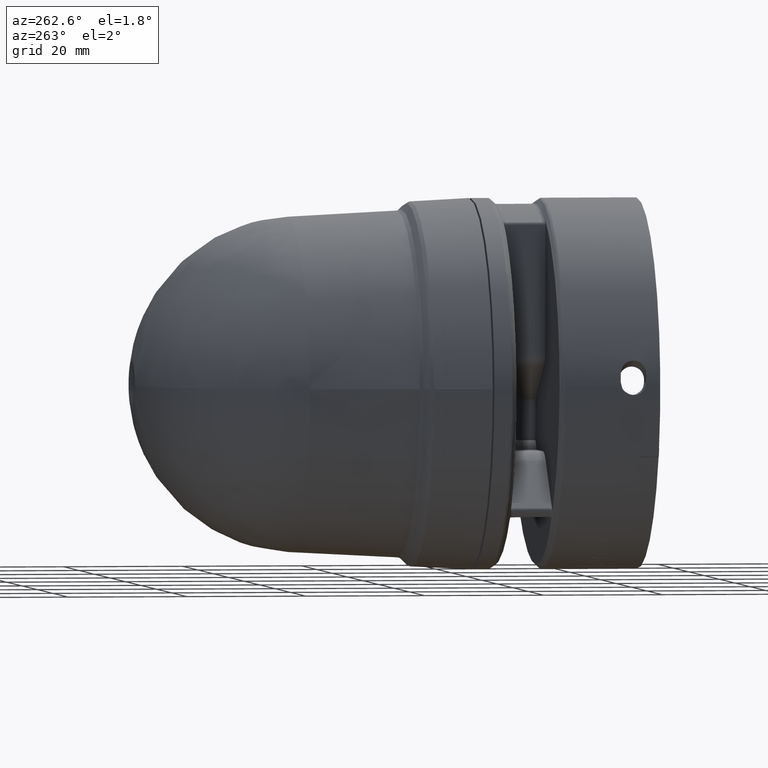
[diagram: clean part render]
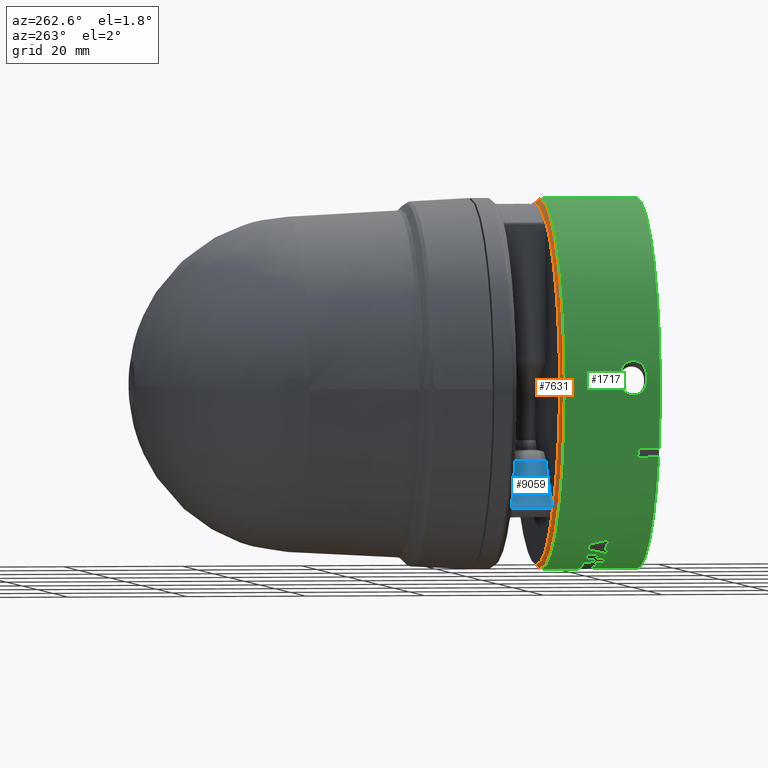
[diagram: same view with three faces highlighted in distinct colors, each labeled with its STEP entity id]
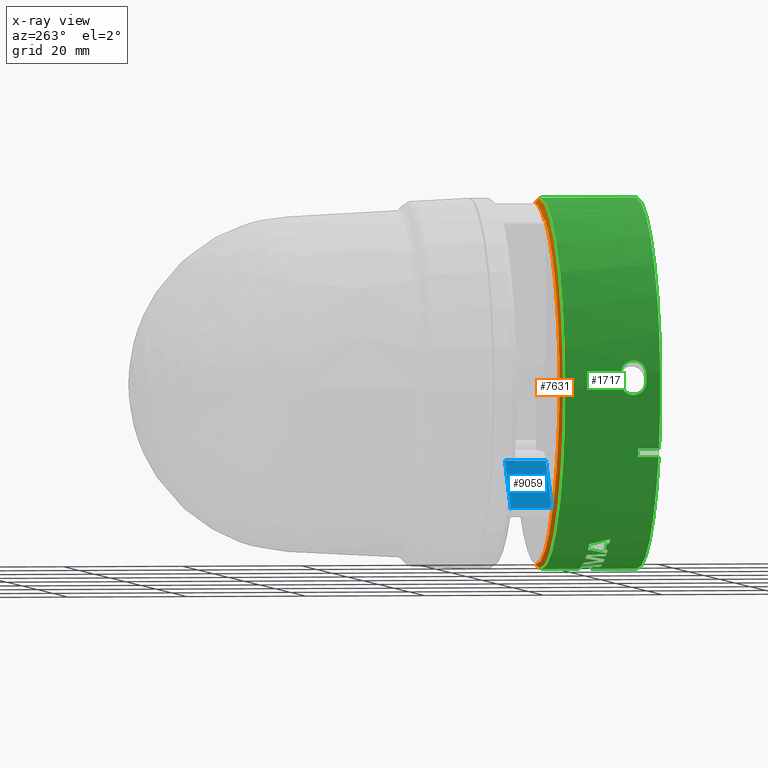
[diagram: x-ray of the same camera — body ghosted, the three highlighted faces saturated]
A machine part, auxiliary view with three faces highlighted in distinct colors.
The next image is the same camera in x-ray (body ghosted, the three faces saturated) — at least one of them is partly hidden behind the body in this view.
Their STEP definitions:

[orange] entity #7631 — the highlighted conical surface has half-angle 45 deg.
#15 = ORIENTED_EDGE ( 'NONE', *, *, #766, .F. ) ;
#127 = VERTEX_POINT ( 'NONE', #3851 ) ;
#138 =( BOUNDED_CURVE ( )  B_SPLINE_CURVE ( 3, ( #8007, #11865, #7164, #6989 ),
 .UNSPECIFIED., .F., .F. ) 
 B_SPLINE_CURVE_WITH_KNOTS ( ( 4, 4 ),
 ( 7.078302570340478079E-15, 0.7747269966079085579 ),
 .UNSPECIFIED. ) 
 CURVE ( )  GEOMETRIC_REPRESENTATION_ITEM ( )  RATIONAL_B_SPLINE_CURVE ( ( 1.000000000000000000, 0.9506054743416445518, 0.9506054743416445518, 1.000000000000000000 ) ) 
 REPRESENTATION_ITEM ( '' )  );
#144 = VECTOR ( 'NONE', #6920, 39.37007874015748854 ) ;
#172 = VERTEX_POINT ( 'NONE', #10832 ) ;
#391 = CARTESIAN_POINT ( 'NONE',  ( -1.494699877558881340, -0.3609751481072435708, -0.1742641849364574003 ) ) ;
#535 = CARTESIAN_POINT ( 'NONE',  ( -0.8538744642502956728, -0.3531637327336093479, -0.8257055013163270285 ) ) ;
#766 = EDGE_CURVE ( 'NONE', #3883, #4429, #138, .T. ) ;
#836 = EDGE_CURVE ( 'NONE', #7042, #2445, #8319, .T. ) ;
#904 = CARTESIAN_POINT ( 'NONE',  ( 0.0000000000000000000, -0.3570122044173118514, -1.191657873708650284 ) ) ;
#1092 = CIRCLE ( 'NONE', #10811, 1.214706826401310558 ) ;
#1136 = CARTESIAN_POINT ( 'NONE',  ( 0.0000000000000000000, -0.3522223074572456980, 0.0000000000000000000 ) ) ;
#1296 = EDGE_CURVE ( 'NONE', #5917, #172, #11978, .T. ) ;
#1422 = ORIENTED_EDGE ( 'NONE', *, *, #1296, .F. ) ;
#1447 = CARTESIAN_POINT ( 'NONE',  ( -0.4839997677732262304, -0.3570450563504374286, 1.088977047730207204 ) ) ;
#1708 = VERTEX_POINT ( 'NONE', #3235 ) ;
#1879 = AXIS2_PLACEMENT_3D ( 'NONE', #1136, #5821, #2965 ) ;
#1898 = LINE ( 'NONE', #2777, #8119 ) ;
#2445 = VERTEX_POINT ( 'NONE', #6423 ) ;
#2495 = ORIENTED_EDGE ( 'NONE', *, *, #836, .T. ) ;
#2499 = B_SPLINE_CURVE_WITH_KNOTS ( 'NONE', 3,
 ( #5839, #5776, #5905, #7795 ),
 .UNSPECIFIED., .F., .F.,
 ( 4, 4 ),
 ( 0.0000000000000000000, 1.000000000000000000 ),
 .UNSPECIFIED. ) ;
#2777 = CARTESIAN_POINT ( 'NONE',  ( 0.0000000000000000000, -0.3800611571099717922, -1.214706826401310558 ) ) ;
#2965 = DIRECTION ( 'NONE',  ( -1.224646799147350002E-16, 0.0000000000000000000, 1.000000000000000000 ) ) ;
#3066 = CARTESIAN_POINT ( 'NONE',  ( -0.4839997677732262304, -0.3570450563504374286, 1.088977047730207204 ) ) ;
#3092 = CARTESIAN_POINT ( 'NONE',  ( 0.0000000000000000000, -0.3800611571099719033, -1.214706826401310558 ) ) ;
#3235 = CARTESIAN_POINT ( 'NONE',  ( -0.8532088059364869581, -0.3522223074601273374, -0.8250395916018522513 ) ) ;
#3453 = CARTESIAN_POINT ( 'NONE',  ( -0.8532088059364869581, -0.3522223074601273374, -0.8250395916018522513 ) ) ;
#3751 = ORIENTED_EDGE ( 'NONE', *, *, #3939, .T. ) ;
#3851 = CARTESIAN_POINT ( 'NONE',  ( -0.8250395916029763521, -0.3522223074617089056, -0.8532088059376008449 ) ) ;
#3883 = VERTEX_POINT ( 'NONE', #904 ) ;
#3939 = EDGE_CURVE ( 'NONE', #2445, #1708, #6173, .T. ) ;
#4039 = VERTEX_POINT ( 'NONE', #5980 ) ;
#4213 = EDGE_CURVE ( 'NONE', #3883, #8715, #1898, .T. ) ;
#4214 = FACE_OUTER_BOUND ( 'NONE', #8323, .T. ) ;
#4327 = ORIENTED_EDGE ( 'NONE', *, *, #5527, .T. ) ;
#4429 = VERTEX_POINT ( 'NONE', #9130 ) ;
#4596 = CARTESIAN_POINT ( 'NONE',  ( 0.0000000000000000000, -0.3522223074595072778, 0.0000000000000000000 ) ) ;
#4745 = CIRCLE ( 'NONE', #11826, 1.186867976750845655 ) ;
#4825 = ORIENTED_EDGE ( 'NONE', *, *, #11080, .T. ) ;
#5233 = ORIENTED_EDGE ( 'NONE', *, *, #12385, .T. ) ;
#5363 = CARTESIAN_POINT ( 'NONE',  ( -0.8542072834139793347, -0.3536344453706550262, -0.8260384663341292510 ) ) ;
#5527 = EDGE_CURVE ( 'NONE', #4039, #7042, #2499, .T. ) ;
#5776 = CARTESIAN_POINT ( 'NONE',  ( -0.4840182178581712291, -0.3538298865840742158, 1.085449692436573521 ) ) ;
#5821 = DIRECTION ( 'NONE',  ( 0.0000000000000000000, -1.000000000000000000, 0.0000000000000000000 ) ) ;
#5839 = CARTESIAN_POINT ( 'NONE',  ( -0.4840230121855211842, -0.3522223074569762469, 1.083686909538679410 ) ) ;
#5905 = CARTESIAN_POINT ( 'NONE',  ( -0.4840104704723244833, -0.3554374657111778468, 1.087213070224217093 ) ) ;
#5917 = VERTEX_POINT ( 'NONE', #9949 ) ;
#5980 = CARTESIAN_POINT ( 'NONE',  ( -0.4840230121855211842, -0.3522223074569762469, 1.083686909538679410 ) ) ;
#6173 = B_SPLINE_CURVE_WITH_KNOTS ( 'NONE', 3,
 ( #5363, #535, #8273, #3453 ),
 .UNSPECIFIED., .F., .F.,
 ( 4, 4 ),
 ( 0.0000000000000000000, 1.000000000000000000 ),
 .UNSPECIFIED. ) ;
#6222 = VECTOR ( 'NONE', #8659, 39.37007874015748854 ) ;
#6382 = AXIS2_PLACEMENT_3D ( 'NONE', #8016, #11932, #11873 ) ;
#6423 = CARTESIAN_POINT ( 'NONE',  ( -0.8542072834139793347, -0.3536344453706550262, -0.8260384663341292510 ) ) ;
#6478 = ORIENTED_EDGE ( 'NONE', *, *, #8601, .T. ) ;
#6648 = DIRECTION ( 'NONE',  ( 0.0000000000000000000, -0.7071067811865440200, -0.7071067811865509034 ) ) ;
#6699 = CARTESIAN_POINT ( 'NONE',  ( -0.8256930755448529391, -0.3531461563550747362, -0.8538620298793725416 ) ) ;
#6920 = DIRECTION ( 'NONE',  ( 8.659560562354974766E-17, -0.7071067811865440200, 0.7071067811865509034 ) ) ;
#6924 = CARTESIAN_POINT ( 'NONE',  ( -1.321261143320085818, -0.3625729882815474370, 0.7229025496720652422 ) ) ;
#6989 = CARTESIAN_POINT ( 'NONE',  ( -0.8263465591146225142, -0.3540700053481348752, -0.8545152539599218944 ) ) ;
#7042 = VERTEX_POINT ( 'NONE', #1447 ) ;
#7164 = CARTESIAN_POINT ( 'NONE',  ( -0.6027098741461304199, -0.3559805114075170196, -1.073437564368410646 ) ) ;
#7621 = DIRECTION ( 'NONE',  ( 0.0000000000000000000, -1.000000000000000000, 0.0000000000000000000 ) ) ;
#7631 = ADVANCED_FACE ( 'NONE', ( #4214 ), #10228, .T. ) ;
#7795 = CARTESIAN_POINT ( 'NONE',  ( -0.4839997677732262304, -0.3570450563504374286, 1.088977047730207204 ) ) ;
#8007 = CARTESIAN_POINT ( 'NONE',  ( 0.0000000000000000000, -0.3570122044173118514, -1.191657873708650284 ) ) ;
#8016 = CARTESIAN_POINT ( 'NONE',  ( 0.0000000000000000000, -0.3800611571099717922, 0.0000000000000000000 ) ) ;
#8119 = VECTOR ( 'NONE', #6648, 39.37007874015748854 ) ;
#8273 = CARTESIAN_POINT ( 'NONE',  ( -0.8535416384242459076, -0.3526930200965583406, -0.8253725430720253442 ) ) ;
#8319 =( BOUNDED_CURVE ( )  B_SPLINE_CURVE ( 3, ( #3066, #6924, #391, #10793 ),
 .UNSPECIFIED., .F., .F. ) 
 B_SPLINE_CURVE_WITH_KNOTS ( ( 4, 4 ),
 ( 5.517289589831066543, 7.452538924579792834 ),
 .UNSPECIFIED. ) 
 CURVE ( )  GEOMETRIC_REPRESENTATION_ITEM ( )  RATIONAL_B_SPLINE_CURVE ( ( 1.000000000000000000, 0.7115048749986266907, 0.7115048749986266907, 1.000000000000000000 ) ) 
 REPRESENTATION_ITEM ( '' )  );
#8323 = EDGE_LOOP ( 'NONE', ( #1422, #8815, #4327, #2495, #3751, #5233, #6478, #15, #10275, #4825 ) ) ;
#8601 = EDGE_CURVE ( 'NONE', #127, #4429, #11570, .T. ) ;
#8659 = DIRECTION ( 'NONE',  ( -0.5001351856679284724, -0.7070559560597088344, -0.4999366670463345486 ) ) ;
#8715 = VERTEX_POINT ( 'NONE', #3092 ) ;
#8815 = ORIENTED_EDGE ( 'NONE', *, *, #10091, .T. ) ;
#9130 = CARTESIAN_POINT ( 'NONE',  ( -0.8263465591146225142, -0.3540700053481348752, -0.8545152539599218944 ) ) ;
#9949 = CARTESIAN_POINT ( 'NONE',  ( 1.453494068735648830E-16, -0.3522223074572456980, 1.186867976748584130 ) ) ;
#10091 = EDGE_CURVE ( 'NONE', #5917, #4039, #10804, .T. ) ;
#10228 = CONICAL_SURFACE ( 'NONE', #6382, 1.214706826401310558, 0.7853981633974531640 ) ;
#10275 = ORIENTED_EDGE ( 'NONE', *, *, #4213, .T. ) ;
#10325 = DIRECTION ( 'NONE',  ( -0.0000000000000000000, 1.000000000000000000, -0.0000000000000000000 ) ) ;
#10611 = DIRECTION ( 'NONE',  ( 0.0000000000000000000, 0.0000000000000000000, 1.000000000000000000 ) ) ;
#10793 = CARTESIAN_POINT ( 'NONE',  ( -0.8542072834139793347, -0.3536344453706550262, -0.8260384663341292510 ) ) ;
#10804 = CIRCLE ( 'NONE', #1879, 1.186867976748584130 ) ;
#10811 = AXIS2_PLACEMENT_3D ( 'NONE', #12034, #10325, #12218 ) ;
#10832 = CARTESIAN_POINT ( 'NONE',  ( 1.487586826854804430E-16, -0.3800611571099719033, 1.214706826401310558 ) ) ;
#10976 = CARTESIAN_POINT ( 'NONE',  ( 1.487586826854804430E-16, -0.3800611571099717922, 1.214706826401310558 ) ) ;
#11080 = EDGE_CURVE ( 'NONE', #8715, #172, #1092, .T. ) ;
#11570 = LINE ( 'NONE', #6699, #6222 ) ;
#11826 = AXIS2_PLACEMENT_3D ( 'NONE', #4596, #7621, #10611 ) ;
#11865 = CARTESIAN_POINT ( 'NONE',  ( -0.3129483900340226388, -0.3570122044173118514, -1.191657873708650506 ) ) ;
#11873 = DIRECTION ( 'NONE',  ( 0.0000000000000000000, 0.0000000000000000000, -1.000000000000000000 ) ) ;
#11932 = DIRECTION ( 'NONE',  ( -0.0000000000000000000, -1.000000000000000000, -0.0000000000000000000 ) ) ;
#11978 = LINE ( 'NONE', #10976, #144 ) ;
#12034 = CARTESIAN_POINT ( 'NONE',  ( 0.0000000000000000000, -0.3800611571099719033, 0.0000000000000000000 ) ) ;
#12218 = DIRECTION ( 'NONE',  ( 0.0000000000000000000, 0.0000000000000000000, 1.000000000000000000 ) ) ;
#12385 = EDGE_CURVE ( 'NONE', #1708, #127, #4745, .T. ) ;

[blue] entity #9059 — the highlighted planar face has unit normal (0.7071, 0, -0.7071).
#316 = CARTESIAN_POINT ( 'NONE',  ( -0.8509949443687052639, -0.08001762277112402233, -0.7953172450626934120 ) ) ;
#354 = CARTESIAN_POINT ( 'NONE',  ( -0.8489669447165664184, -0.09476798351128148945, -0.7932892454105361368 ) ) ;
#536 = CARTESIAN_POINT ( 'NONE',  ( -0.8511881453539934528, -0.3537120555675458133, -0.7955104460479631712 ) ) ;
#609 = DIRECTION ( 'NONE',  ( -0.0000000000000000000, -1.000000000000000000, -0.0000000000000000000 ) ) ;
#661 = CARTESIAN_POINT ( 'NONE',  ( -0.5464047108834813038, -0.3522725796167314738, -0.4907270115774519104 ) ) ;
#1032 = ORIENTED_EDGE ( 'NONE', *, *, #1046, .F. ) ;
#1046 = EDGE_CURVE ( 'NONE', #3857, #6050, #3045, .T. ) ;
#1048 = B_SPLINE_CURVE_WITH_KNOTS ( 'NONE', 3,
 ( #536, #4414, #8275, #3455 ),
 .UNSPECIFIED., .F., .F.,
 ( 4, 4 ),
 ( 0.0000000000000000000, 1.000000000000000000 ),
 .UNSPECIFIED. ) ;
#1540 = CARTESIAN_POINT ( 'NONE',  ( -0.8489669447165664184, -0.3383028826304507741, -0.7932892454105361368 ) ) ;
#1715 = ORIENTED_EDGE ( 'NONE', *, *, #7802, .F. ) ;
#1938 = B_SPLINE_CURVE_WITH_KNOTS ( 'NONE', 3,
 ( #354, #12181, #8265, #7363 ),
 .UNSPECIFIED., .F., .F.,
 ( 4, 4 ),
 ( 0.0000000000000000000, 1.000000000000000000 ),
 .UNSPECIFIED. ) ;
#2706 = VECTOR ( 'NONE', #11304, 39.37007874015748143 ) ;
#2799 = VERTEX_POINT ( 'NONE', #11330 ) ;
#2839 = VECTOR ( 'NONE', #8052, 39.37007874015748854 ) ;
#3045 = LINE ( 'NONE', #6029, #6820 ) ;
#3195 = DIRECTION ( 'NONE',  ( 0.7071067811865450192, 0.0000000000000000000, -0.7071067811865500152 ) ) ;
#3404 = EDGE_CURVE ( 'NONE', #6288, #3857, #5689, .T. ) ;
#3455 = CARTESIAN_POINT ( 'NONE',  ( -0.8489669447165664184, -0.3383028826304507741, -0.7932892454105361368 ) ) ;
#3634 = VERTEX_POINT ( 'NONE', #9168 ) ;
#3636 = VECTOR ( 'NONE', #609, 39.37007874015748143 ) ;
#3857 = VERTEX_POINT ( 'NONE', #661 ) ;
#4268 = FACE_OUTER_BOUND ( 'NONE', #8915, .T. ) ;
#4326 = DIRECTION ( 'NONE',  ( -0.7071067811865500152, 0.0000000000000000000, -0.7071067811865450192 ) ) ;
#4368 = LINE ( 'NONE', #316, #2839 ) ;
#4414 = CARTESIAN_POINT ( 'NONE',  ( -0.8497274422616929446, -0.3488558705223036016, -0.7940497429556614417 ) ) ;
#4469 = EDGE_CURVE ( 'NONE', #2799, #6288, #4368, .T. ) ;
#4470 = LINE ( 'NONE', #5249, #2706 ) ;
#5167 = PLANE ( 'NONE',  #9447 ) ;
#5249 = CARTESIAN_POINT ( 'NONE',  ( -0.8489669447165659744, -0.1968503937007874127, -0.7932892454105362479 ) ) ;
#5498 = CARTESIAN_POINT ( 'NONE',  ( -0.5464047108834816369, -0.1968503937007874127, -0.4907270115774515773 ) ) ;
#5689 = LINE ( 'NONE', #5498, #3636 ) ;
#6029 = CARTESIAN_POINT ( 'NONE',  ( -0.5464047108834804156, -0.3522725796167314738, -0.4907270115774527430 ) ) ;
#6050 = VERTEX_POINT ( 'NONE', #9350 ) ;
#6231 = CARTESIAN_POINT ( 'NONE',  ( -0.5464047108834804156, -0.1968503937007874127, -0.4907270115774527430 ) ) ;
#6288 = VERTEX_POINT ( 'NONE', #7345 ) ;
#6722 = ORIENTED_EDGE ( 'NONE', *, *, #12315, .F. ) ;
#6820 = VECTOR ( 'NONE', #7922, 39.37007874015748854 ) ;
#6870 = ORIENTED_EDGE ( 'NONE', *, *, #7404, .F. ) ;
#7345 = CARTESIAN_POINT ( 'NONE',  ( -0.5464047108834835242, -0.08145618624419748155, -0.4907270115774534092 ) ) ;
#7363 = CARTESIAN_POINT ( 'NONE',  ( -0.8509949443688842319, -0.08001762277214462260, -0.7953172450628613888 ) ) ;
#7404 = EDGE_CURVE ( 'NONE', #3634, #2799, #1938, .T. ) ;
#7802 = EDGE_CURVE ( 'NONE', #6050, #7876, #1048, .T. ) ;
#7876 = VERTEX_POINT ( 'NONE', #1540 ) ;
#7922 = DIRECTION ( 'NONE',  ( -0.7071028379985097034, -0.003339609095892193385, -0.7071028379985048185 ) ) ;
#8052 = DIRECTION ( 'NONE',  ( 0.7071028379984873879, -0.003339609096496314739, 0.7071028379985243584 ) ) ;
#8265 = CARTESIAN_POINT ( 'NONE',  ( -0.8496596839950119051, -0.08469000570334883626, -0.7939819846889804023 ) ) ;
#8275 = CARTESIAN_POINT ( 'NONE',  ( -0.8489669447165669736, -0.3435801697803169130, -0.7932892454105353597 ) ) ;
#8312 = ORIENTED_EDGE ( 'NONE', *, *, #4469, .F. ) ;
#8685 = ORIENTED_EDGE ( 'NONE', *, *, #3404, .F. ) ;
#8915 = EDGE_LOOP ( 'NONE', ( #1032, #8685, #8312, #6870, #6722, #1715 ) ) ;
#9059 = ADVANCED_FACE ( 'NONE', ( #4268 ), #5167, .F. ) ;
#9168 = CARTESIAN_POINT ( 'NONE',  ( -0.8489669447165664184, -0.09476798351128148945, -0.7932892454105361368 ) ) ;
#9350 = CARTESIAN_POINT ( 'NONE',  ( -0.8511881453539934528, -0.3537120555675458133, -0.7955104460479631712 ) ) ;
#9447 = AXIS2_PLACEMENT_3D ( 'NONE', #6231, #3195, #4326 ) ;
#11304 = DIRECTION ( 'NONE',  ( 0.0000000000000000000, 1.000000000000000000, 0.0000000000000000000 ) ) ;
#11330 = CARTESIAN_POINT ( 'NONE',  ( -0.8509949443688842319, -0.08001762277214462260, -0.7953172450628613888 ) ) ;
#12181 = CARTESIAN_POINT ( 'NONE',  ( -0.8489669447165669736, -0.08972844045475866781, -0.7932892454105353597 ) ) ;
#12315 = EDGE_CURVE ( 'NONE', #7876, #3634, #4470, .T. ) ;

[green] entity #1717 — the highlighted cylindrical surface (partial cylindrical patch) has radius 31 mm, axis along (0, -1, 0).
#17 = CARTESIAN_POINT ( 'NONE',  ( -1.219134187774199463, -0.9310148815738393813, 0.05713852733578068249 ) ) ;
#109 = CARTESIAN_POINT ( 'NONE',  ( -1.206369213527062056, -0.8487336309033944870, 0.1850035128316717126 ) ) ;
#131 = CARTESIAN_POINT ( 'NONE',  ( -0.4057995371292881237, -0.6904962302311430378, -1.151154219168973647 ) ) ;
#139 = EDGE_LOOP ( 'NONE', ( #10403, #3299, #3506, #9396, #8491, #5806, #7118, #4658, #918, #5021, #4571, #3155, #5404 ) ) ;
#186 = CIRCLE ( 'NONE', #10709, 1.220472440944881942 ) ;
#216 = VERTEX_POINT ( 'NONE', #109 ) ;
#233 = CARTESIAN_POINT ( 'NONE',  ( -0.2354350832778693559, -0.6993170098381980004, -1.197548871940957271 ) ) ;
#238 = CARTESIAN_POINT ( 'NONE',  ( -0.2360737957810633836, -0.6995450350383681792, -1.197423153233559523 ) ) ;
#264 = EDGE_CURVE ( 'NONE', #1285, #8811, #5494, .T. ) ;
#280 = AXIS2_PLACEMENT_3D ( 'NONE', #4861, #5939, #10816 ) ;
#295 = AXIS2_PLACEMENT_3D ( 'NONE', #3761, #7556, #9660 ) ;
#297 = LINE ( 'NONE', #9053, #12211 ) ;
#353 = EDGE_CURVE ( 'NONE', #7245, #10722, #5954, .T. ) ;
#408 = CARTESIAN_POINT ( 'NONE',  ( -1.220257253203794301, -0.8986377091534422101, -0.02311018693307360927 ) ) ;
#415 = CARTESIAN_POINT ( 'NONE',  ( -1.219831664201492805, -0.8337478370634403557, -0.03955842142819299828 ) ) ;
#469 = CIRCLE ( 'NONE', #8355, 1.220472440944881942 ) ;
#472 = CARTESIAN_POINT ( 'NONE',  ( -1.220257741581247224, -0.7941862804596980796, -0.02308511577358158054 ) ) ;
#478 = CARTESIAN_POINT ( 'NONE',  ( 0.0000000000000000000, -0.6280040419109330641, 0.0000000000000000000 ) ) ;
#481 = CARTESIAN_POINT ( 'NONE',  ( 0.0000000000000000000, -0.4743029694838032384, -1.220472440944881942 ) ) ;
#489 = CARTESIAN_POINT ( 'NONE',  ( -1.219812485751901709, -0.8464566929133858775, -0.04013077011101737895 ) ) ;
#492 = CARTESIAN_POINT ( 'NONE',  ( 0.0000000000000000000, -0.7592376373833741310, 0.0000000000000000000 ) ) ;
#494 = CARTESIAN_POINT ( 'NONE',  ( -1.208115842638290527, -0.8021111947549354193, 0.1732601550854115380 ) ) ;
#539 = EDGE_CURVE ( 'NONE', #7589, #5344, #9890, .T. ) ;
#552 = CARTESIAN_POINT ( 'NONE',  ( -1.216385651149103131, -0.9309888832791205493, 0.09979442261234260092 ) ) ;
#560 = EDGE_CURVE ( 'NONE', #4369, #5625, #3403, .T. ) ;
#588 = CARTESIAN_POINT ( 'NONE',  ( -1.220108841722064241, -0.7618263554337767474, 0.03173025165490043348 ) ) ;
#612 = CARTESIAN_POINT ( 'NONE',  ( -1.215446091552259800, -0.9304696883786190975, 0.1107843596410606202 ) ) ;
#645 = EDGE_CURVE ( 'NONE', #3498, #6845, #8967, .T. ) ;
#646 = CARTESIAN_POINT ( 'NONE',  ( 1.494647668250706726E-16, -1.023622047244094668, 1.220472440944881942 ) ) ;
#650 = CARTESIAN_POINT ( 'NONE',  ( -0.2436873078668139736, -0.7021642788695907633, -1.195897883430112163 ) ) ;
#658 = LINE ( 'NONE', #7430, #3051 ) ;
#741 = CARTESIAN_POINT ( 'NONE',  ( -1.210526842048389673, -0.7814003812831821216, 0.1555432325680158323 ) ) ;
#795 = EDGE_CURVE ( 'NONE', #5625, #7944, #6112, .T. ) ;
#824 = CARTESIAN_POINT ( 'NONE',  ( -0.5690329670242907367, -0.7492388872521404952, -1.079703424126722267 ) ) ;
#841 = CARTESIAN_POINT ( 'NONE',  ( -0.2395600725096219963, -0.6964345195543472089, -1.196730525542464507 ) ) ;
#843 = CARTESIAN_POINT ( 'NONE',  ( -0.2422098099022492457, -0.7015166184082911593, -1.196197051949667411 ) ) ;
#852 = CARTESIAN_POINT ( 'NONE',  ( -0.2442084142202407826, -0.6343054257149972619, -1.195791664023182932 ) ) ;
#853 = CARTESIAN_POINT ( 'NONE',  ( -1.218652901202287753, -0.9310086912394757164, 0.06679408846365397778 ) ) ;
#858 = EDGE_CURVE ( 'NONE', #2599, #8450, #12294, .T. ) ;
#918 = ORIENTED_EDGE ( 'NONE', *, *, #3389, .T. ) ;
#937 = VERTEX_POINT ( 'NONE', #10515 ) ;
#958 = EDGE_CURVE ( 'NONE', #5344, #8511, #2003, .T. ) ;
#969 = CARTESIAN_POINT ( 'NONE',  ( -0.2426437650778657251, -0.6936471001304395090, -1.196109155502774302 ) ) ;
#990 = CARTESIAN_POINT ( 'NONE',  ( -0.2354744907864669001, -0.6993822329596650622, -1.197541123842855937 ) ) ;
#1034 = CARTESIAN_POINT ( 'NONE',  ( -0.2355388017962455061, -0.6990590409160235552, -1.197528476469075009 ) ) ;
#1098 = CARTESIAN_POINT ( 'NONE',  ( -0.2464626617321320767, -0.6887005877478659110, -1.195328189560895593 ) ) ;
#1106 = AXIS2_PLACEMENT_3D ( 'NONE', #11006, #7074, #2205 ) ;
#1115 = CARTESIAN_POINT ( 'NONE',  ( -1.218369250573926310, -0.9310056923912524152, 0.07161946915390790536 ) ) ;
#1125 = CARTESIAN_POINT ( 'NONE',  ( 0.0000000000000000000, -0.7592376373833741310, 0.0000000000000000000 ) ) ;
#1143 = FACE_BOUND ( 'NONE', #3802, .T. ) ;
#1172 = CIRCLE ( 'NONE', #3572, 1.220472440944881942 ) ;
#1178 = EDGE_CURVE ( 'NONE', #7297, #5412, #3747, .T. ) ;
#1191 = CARTESIAN_POINT ( 'NONE',  ( -0.2354224014054412117, -0.6992458285624137959, -1.197551365092748510 ) ) ;
#1208 = CARTESIAN_POINT ( 'NONE',  ( -0.2464840540925113399, -0.7037960202653859021, -1.195323634077432695 ) ) ;
#1225 = CARTESIAN_POINT ( 'NONE',  ( -1.206369213527061834, -0.8441259369959573933, 0.1850035128316733501 ) ) ;
#1232 = LINE ( 'NONE', #4007, #2378 ) ;
#1244 = EDGE_CURVE ( 'NONE', #8514, #11533, #9689, .T. ) ;
#1257 = CARTESIAN_POINT ( 'NONE',  ( -1.220418786047017257, -0.7822445623876103094, -0.01205389335706974832 ) ) ;
#1266 = EDGE_CURVE ( 'NONE', #10848, #9379, #8634, .T. ) ;
#1273 = DIRECTION ( 'NONE',  ( 0.0000000000000000000, -1.000000000000000000, 0.0000000000000000000 ) ) ;
#1285 = VERTEX_POINT ( 'NONE', #5025 ) ;
#1292 = DIRECTION ( 'NONE',  ( 0.0000000000000000000, -1.000000000000000000, 0.0000000000000000000 ) ) ;
#1348 = CARTESIAN_POINT ( 'NONE',  ( -0.4369631495579298086, -0.6280040419109330641, -1.139568420514702085 ) ) ;
#1375 = CARTESIAN_POINT ( 'NONE',  ( -0.3590025725788187905, -0.7592376373833741310, -1.166477660303766095 ) ) ;
#1427 = CARTESIAN_POINT ( 'NONE',  ( -1.219727180202907491, -0.9310244655924444501, 0.04264952511072427066 ) ) ;
#1434 = CARTESIAN_POINT ( 'NONE',  ( -1.219950067311086350, -0.8179607096156321644, -0.03576564652794364529 ) ) ;
#1457 = CARTESIAN_POINT ( 'NONE',  ( -0.3085149451984344204, -0.6505012297062087168, -1.180835089119206760 ) ) ;
#1468 = CARTESIAN_POINT ( 'NONE',  ( 0.0000000000000000000, -0.6280040419109330641, -1.220472440944881942 ) ) ;
#1475 = VERTEX_POINT ( 'NONE', #3478 ) ;
#1478 = ORIENTED_EDGE ( 'NONE', *, *, #5520, .T. ) ;
#1493 = CARTESIAN_POINT ( 'NONE',  ( -0.3085149451984346980, -0.4743029694838032384, -1.180835089119206760 ) ) ;
#1571 = CARTESIAN_POINT ( 'NONE',  ( -1.216385513546127006, -0.7618706855951051793, 0.09979609982901772869 ) ) ;
#1573 = ORIENTED_EDGE ( 'NONE', *, *, #12378, .T. ) ;
#1578 = CARTESIAN_POINT ( 'NONE',  ( -1.133612551519876721, -0.8858267716535438430, -0.4521897413061848336 ) ) ;
#1603 = DIRECTION ( 'NONE',  ( 0.0000000000000000000, -1.000000000000000000, 0.0000000000000000000 ) ) ;
#1618 = DIRECTION ( 'NONE',  ( -0.0000000000000000000, 1.000000000000000000, -0.0000000000000000000 ) ) ;
#1654 = VERTEX_POINT ( 'NONE', #9824 ) ;
#1667 = ORIENTED_EDGE ( 'NONE', *, *, #10805, .T. ) ;
#1687 = CARTESIAN_POINT ( 'NONE',  ( -0.4229265956328314702, -0.7592376373833741310, -1.144851987731331899 ) ) ;
#1717 = ADVANCED_FACE ( 'NONE', ( #3041, #6151, #7087, #10770, #1143 ), #5008, .T. ) ;
#1746 = DIRECTION ( 'NONE',  ( 0.0000000000000000000, 0.0000000000000000000, -1.000000000000000000 ) ) ;
#1782 = VECTOR ( 'NONE', #1292, 39.37007874015748143 ) ;
#1811 = CARTESIAN_POINT ( 'NONE',  ( -0.2127110388029243015, -0.7093148463107575852, -1.201793240569000387 ) ) ;
#1814 = CARTESIAN_POINT ( 'NONE',  ( 0.0000000000000000000, -0.7592376373833741310, 0.0000000000000000000 ) ) ;
#1837 = ORIENTED_EDGE ( 'NONE', *, *, #8537, .T. ) ;
#1841 = VERTEX_POINT ( 'NONE', #1687 ) ;
#1855 = CARTESIAN_POINT ( 'NONE',  ( -0.2451205307510491427, -0.7029278527919164965, -1.195604802082041562 ) ) ;
#1856 = VERTEX_POINT ( 'NONE', #2699 ) ;
#1868 = DIRECTION ( 'NONE',  ( 0.0000000000000000000, -1.000000000000000000, 0.0000000000000000000 ) ) ;
#1926 = CARTESIAN_POINT ( 'NONE',  ( 0.0000000000000000000, -0.6589376751294370171, -1.220472440944881942 ) ) ;
#1930 = CIRCLE ( 'NONE', #9034, 1.220472440944881942 ) ;
#1942 = CARTESIAN_POINT ( 'NONE',  ( -0.6476818940183615148, -0.7542382623177573686, -1.034440025227284066 ) ) ;
#1966 = VECTOR ( 'NONE', #6169, 39.37007874015748143 ) ;
#1974 = B_SPLINE_CURVE_WITH_KNOTS ( 'NONE', 3,
 ( #2144, #11824, #9671, #4032, #5056, #7763, #3087, #6008, #9870, #11629, #1191, #8985, #8917, #6818, #233, #4100, #7015, #10881, #990, #9936, #2386, #7071, #2448, #3273, #3388, #5302, #5359, #6195 ),
 .UNSPECIFIED., .F., .F.,
 ( 4, 3, 3, 3, 3, 3, 3, 3, 3, 4 ),
 ( 1.734723475976807094E-18, 1.686185776869597604E-06, 3.361822106312208807E-06, 5.220023397161132832E-06, 7.133775082509837839E-06, 7.952134056759960012E-06, 9.619007009450700356E-06, 1.049343080063795822E-05, 1.228110263767654911E-05, 1.252020452558595982E-05 ),
 .UNSPECIFIED. ) ;
#1980 = VERTEX_POINT ( 'NONE', #5613 ) ;
#1998 = ORIENTED_EDGE ( 'NONE', *, *, #11977, .T. ) ;
#2003 = B_SPLINE_CURVE_WITH_KNOTS ( 'NONE', 3,
 ( #9502, #824, #8676, #10579 ),
 .UNSPECIFIED., .F., .F.,
 ( 4, 4 ),
 ( 0.0000000000000000000, 1.000000000000000000 ),
 .UNSPECIFIED. ) ;
#2013 = AXIS2_PLACEMENT_3D ( 'NONE', #7513, #6572, #7329 ) ;
#2056 = CARTESIAN_POINT ( 'NONE',  ( -0.2478182547183539197, -0.6861610107924214219, -1.195047736173877384 ) ) ;
#2100 = ORIENTED_EDGE ( 'NONE', *, *, #5991, .T. ) ;
#2121 = CARTESIAN_POINT ( 'NONE',  ( -0.5061140781404562805, -0.6280040419109330641, -1.110586115082479619 ) ) ;
#2122 = CARTESIAN_POINT ( 'NONE',  ( -0.01568542706198551920, -0.6781540230379016210, -1.220371642772742238 ) ) ;
#2124 = CIRCLE ( 'NONE', #9195, 1.220472440944881942 ) ;
#2144 = CARTESIAN_POINT ( 'NONE',  ( -0.2355388017962455061, -0.6990590409160235552, -1.197528476469075009 ) ) ;
#2154 = DIRECTION ( 'NONE',  ( 0.0000000000000000000, 0.0000000000000000000, -1.000000000000000000 ) ) ;
#2182 = CARTESIAN_POINT ( 'NONE',  ( 0.0000000000000000000, -0.7592376373833741310, 0.0000000000000000000 ) ) ;
#2205 = DIRECTION ( 'NONE',  ( 0.0000000000000000000, 0.0000000000000000000, -1.000000000000000000 ) ) ;
#2206 = DIRECTION ( 'NONE',  ( -0.0000000000000000000, 1.000000000000000000, -0.0000000000000000000 ) ) ;
#2208 = CARTESIAN_POINT ( 'NONE',  ( -0.2393139382782061009, -0.7004131323960081090, -1.196779770071225490 ) ) ;
#2248 = DIRECTION ( 'NONE',  ( 0.0000000000000000000, -1.000000000000000000, 0.0000000000000000000 ) ) ;
#2274 = B_SPLINE_CURVE_WITH_KNOTS ( 'NONE', 3,
 ( #1427, #10999, #10939, #10059, #4227, #3269, #2321, #6189, #5296, #9105, #408, #3324, #4286, #10114, #4461, #5415 ),
 .UNSPECIFIED., .F., .F.,
 ( 4, 2, 2, 2, 2, 2, 2, 4 ),
 ( -0.001129333163515515957, -0.0007191814024113717466, -0.0003090296413072275358, 0.0001011221197969166749, 0.0005112738809010608856, 0.0009214256420052050964, 0.001331577403109349307, 0.002151880925317637729 ),
 .UNSPECIFIED. ) ;
#2293 = EDGE_CURVE ( 'NONE', #7245, #6045, #2274, .T. ) ;
#2320 = DIRECTION ( 'NONE',  ( -0.0000000000000000000, 1.000000000000000000, -0.0000000000000000000 ) ) ;
#2321 = CARTESIAN_POINT ( 'NONE',  ( -1.220480277001261271, -0.9200592701354119995, 0.001104373700239640000 ) ) ;
#2331 = CARTESIAN_POINT ( 'NONE',  ( -0.6918618811561965121, -0.7592376373833741310, -1.005425341091503944 ) ) ;
#2378 = VECTOR ( 'NONE', #4968, 39.37007874015748143 ) ;
#2385 = DIRECTION ( 'NONE',  ( -0.0000000000000000000, 1.000000000000000000, -0.0000000000000000000 ) ) ;
#2386 = CARTESIAN_POINT ( 'NONE',  ( -0.2354903769513314871, -0.6993989689448566471, -1.197538000044458206 ) ) ;
#2387 = VECTOR ( 'NONE', #5425, 39.37007874015748143 ) ;
#2410 = CIRCLE ( 'NONE', #3608, 1.220472440944881942 ) ;
#2426 = B_SPLINE_CURVE_WITH_KNOTS ( 'NONE', 3,
 ( #4169, #1942, #11891, #3897 ),
 .UNSPECIFIED., .F., .F.,
 ( 4, 4 ),
 ( 0.0000000000000000000, 1.000000000000000000 ),
 .UNSPECIFIED. ) ;
#2432 = VERTEX_POINT ( 'NONE', #3566 ) ;
#2446 = CARTESIAN_POINT ( 'NONE',  ( -1.220334281182125169, -0.7640624308690728839, 0.02089128293438231171 ) ) ;
#2448 = CARTESIAN_POINT ( 'NONE',  ( -0.2355170974265635708, -0.6994211183696608103, -1.197532745380158525 ) ) ;
#2464 = CARTESIAN_POINT ( 'NONE',  ( -1.208101859337689543, -0.8905879065578630183, 0.1733576051910884208 ) ) ;
#2524 = CARTESIAN_POINT ( 'NONE',  ( -1.215447531233070366, -0.7623902722854467573, 0.1107665193678431109 ) ) ;
#2548 = ORIENTED_EDGE ( 'NONE', *, *, #11316, .T. ) ;
#2559 = CARTESIAN_POINT ( 'NONE',  ( -1.219812485751905928, -0.8445794225222358342, -0.04013077011101722630 ) ) ;
#2574 = EDGE_CURVE ( 'NONE', #5340, #10533, #6053, .T. ) ;
#2599 = VERTEX_POINT ( 'NONE', #2122 ) ;
#2624 = CARTESIAN_POINT ( 'NONE',  ( -0.2299020958165175765, -0.6280040419109330641, -1.198623379316928750 ) ) ;
#2625 = AXIS2_PLACEMENT_3D ( 'NONE', #6311, #2385, #9110 ) ;
#2642 = CARTESIAN_POINT ( 'NONE',  ( -1.206369213527061390, -0.8542886930038311455, 0.1850035128316722399 ) ) ;
#2650 = EDGE_CURVE ( 'NONE', #5716, #5581, #3913, .T. ) ;
#2699 = CARTESIAN_POINT ( 'NONE',  ( -0.2720974932180452166, -0.7592376373833741310, -1.189754568509999055 ) ) ;
#2700 = CARTESIAN_POINT ( 'NONE',  ( -1.212764879134584639, -0.7698164860657826791, 0.1370435199217867606 ) ) ;
#2719 = ORIENTED_EDGE ( 'NONE', *, *, #539, .T. ) ;
#2727 = AXIS2_PLACEMENT_3D ( 'NONE', #7692, #9667, #9736 ) ;
#2737 = CARTESIAN_POINT ( 'NONE',  ( -0.2429964251894075333, -0.6932646643896270833, -1.196037506289467034 ) ) ;
#2742 = CARTESIAN_POINT ( 'NONE',  ( -0.2519562275343369961, -0.4743029694838032384, -1.194182163035700350 ) ) ;
#2767 = VECTOR ( 'NONE', #10594, 39.37007874015748143 ) ;
#2794 = VECTOR ( 'NONE', #4323, 39.37007874015748143 ) ;
#2798 = CARTESIAN_POINT ( 'NONE',  ( -0.2387341710116677729, -0.6970624556677875727, -1.196895635639775302 ) ) ;
#2811 = DIRECTION ( 'NONE',  ( 0.0000000000000000000, -1.000000000000000000, 0.0000000000000000000 ) ) ;
#2870 = CARTESIAN_POINT ( 'NONE',  ( -0.5710136529544765915, -0.7442395121865237329, -1.078654897196291929 ) ) ;
#2873 = CARTESIAN_POINT ( 'NONE',  ( -0.6438774548869501402, -0.7442395121865237329, -1.036809916134226572 ) ) ;
#2878 = CARTESIAN_POINT ( 'NONE',  ( -0.2457491615426639631, -0.6371680826749724913, -1.195474938552472555 ) ) ;
#2890 = CARTESIAN_POINT ( 'NONE',  ( -0.2118861289889052979, -0.7090876562564055741, -1.201939029838537731 ) ) ;
#2905 = AXIS2_PLACEMENT_3D ( 'NONE', #2989, #5911, #6790 ) ;
#2919 = CARTESIAN_POINT ( 'NONE',  ( -1.219360240563103437, -0.7618406270006879977, 0.05231603536968302409 ) ) ;
#2934 = CARTESIAN_POINT ( 'NONE',  ( -0.2455996620812027076, -0.6900080599549979210, -1.195505696853921496 ) ) ;
#2940 = CIRCLE ( 'NONE', #2727, 1.220472440944881942 ) ;
#2989 = CARTESIAN_POINT ( 'NONE',  ( 0.0000000000000000000, -0.6781540230379016210, 0.0000000000000000000 ) ) ;
#3018 = CARTESIAN_POINT ( 'NONE',  ( 0.0000000000000000000, -0.4743029694838032384, -1.220472440944881942 ) ) ;
#3021 = VECTOR ( 'NONE', #5134, 39.37007874015748143 ) ;
#3027 = EDGE_CURVE ( 'NONE', #9379, #8201, #3219, .T. ) ;
#3030 = B_SPLINE_CURVE_WITH_KNOTS ( 'NONE', 3,
 ( #11794, #9711, #5785, #8752 ),
 .UNSPECIFIED., .F., .F.,
 ( 4, 4 ),
 ( 0.0000000000000000000, 1.000000000000000000 ),
 .UNSPECIFIED. ) ;
#3041 = FACE_OUTER_BOUND ( 'NONE', #5227, .T. ) ;
#3051 = VECTOR ( 'NONE', #12121, 39.37007874015748143 ) ;
#3087 = CARTESIAN_POINT ( 'NONE',  ( -0.2354479451047685190, -0.6991514000746000823, -1.197546343258539370 ) ) ;
#3089 = EDGE_CURVE ( 'NONE', #8963, #7268, #7478, .T. ) ;
#3108 = VERTEX_POINT ( 'NONE', #11949 ) ;
#3119 = EDGE_CURVE ( 'NONE', #3145, #5716, #9498, .T. ) ;
#3120 = DIRECTION ( 'NONE',  ( 0.0000000000000000000, 0.0000000000000000000, -1.000000000000000000 ) ) ;
#3145 = VERTEX_POINT ( 'NONE', #2559 ) ;
#3154 = CARTESIAN_POINT ( 'NONE',  ( -0.6400287295310630453, -0.6280040419109330641, -1.039190167621312444 ) ) ;
#3155 = ORIENTED_EDGE ( 'NONE', *, *, #8931, .T. ) ;
#3177 = EDGE_CURVE ( 'NONE', #1856, #6956, #658, .T. ) ;
#3198 = CARTESIAN_POINT ( 'NONE',  ( -0.4717612297103909724, -0.6505012297062087168, -1.125608422697741640 ) ) ;
#3219 = LINE ( 'NONE', #1493, #11828 ) ;
#3220 = DIRECTION ( 'NONE',  ( 0.0000000000000000000, -1.000000000000000000, 0.0000000000000000000 ) ) ;
#3269 = CARTESIAN_POINT ( 'NONE',  ( -1.220468292659801834, -0.9226323629830841533, 0.005952729987422185169 ) ) ;
#3273 = CARTESIAN_POINT ( 'NONE',  ( -0.2355376572841112182, -0.6994331808077980384, -1.197528701784411620 ) ) ;
#3299 = ORIENTED_EDGE ( 'NONE', *, *, #11314, .T. ) ;
#3324 = CARTESIAN_POINT ( 'NONE',  ( -1.220129966971556179, -0.8896306584699803510, -0.02906386819643796277 ) ) ;
#3326 = DIRECTION ( 'NONE',  ( 0.0000000000000000000, -1.000000000000000000, 0.0000000000000000000 ) ) ;
#3387 = CARTESIAN_POINT ( 'NONE',  ( -1.220320528552514716, -0.7899068150168394586, -0.01962440508271384373 ) ) ;
#3388 = CARTESIAN_POINT ( 'NONE',  ( -0.2355593856285124466, -0.6994410078536272835, -1.197524427704201422 ) ) ;
#3389 = EDGE_CURVE ( 'NONE', #10533, #7297, #8106, .T. ) ;
#3402 = CARTESIAN_POINT ( 'NONE',  ( -1.154430732862966380, -1.023622047244094668, -0.3960336628715196428 ) ) ;
#3403 = CIRCLE ( 'NONE', #4619, 1.220472440944881942 ) ;
#3447 = VERTEX_POINT ( 'NONE', #8408 ) ;
#3448 = AXIS2_PLACEMENT_3D ( 'NONE', #10577, #12351, #7524 ) ;
#3468 = CARTESIAN_POINT ( 'NONE',  ( -1.209482847911504733, -0.7889770522860524160, 0.1634630634890634482 ) ) ;
#3470 = VERTEX_POINT ( 'NONE', #3526 ) ;
#3478 = CARTESIAN_POINT ( 'NONE',  ( 0.0000000000000000000, -0.7592376373833741310, -1.220472440944881942 ) ) ;
#3487 = EDGE_CURVE ( 'NONE', #3470, #11546, #6287, .T. ) ;
#3498 = VERTEX_POINT ( 'NONE', #10493 ) ;
#3506 = ORIENTED_EDGE ( 'NONE', *, *, #3177, .T. ) ;
#3520 = VERTEX_POINT ( 'NONE', #6500 ) ;
#3526 = CARTESIAN_POINT ( 'NONE',  ( -0.07562987277895168170, -0.7592376373833741310, -1.218126882327698057 ) ) ;
#3566 = CARTESIAN_POINT ( 'NONE',  ( 0.0000000000000000000, -0.7283040041648701779, -1.220472440944881942 ) ) ;
#3572 = AXIS2_PLACEMENT_3D ( 'NONE', #2182, #6049, #8828 ) ;
#3608 = AXIS2_PLACEMENT_3D ( 'NONE', #12132, #1618, #11134 ) ;
#3637 = CARTESIAN_POINT ( 'NONE',  ( -0.07562987277895170946, -0.4743029694838032384, -1.218126882327698057 ) ) ;
#3638 = LINE ( 'NONE', #481, #2387 ) ;
#3653 = CARTESIAN_POINT ( 'NONE',  ( -1.207068012538402790, -0.8757484724161747058, 0.1804015027137030880 ) ) ;
#3685 = CARTESIAN_POINT ( 'NONE',  ( -0.2458871044231782654, -0.6895725755687861502, -1.195446573872851692 ) ) ;
#3694 = ORIENTED_EDGE ( 'NONE', *, *, #858, .T. ) ;
#3697 = EDGE_CURVE ( 'NONE', #6956, #937, #11344, .T. ) ;
#3736 = CARTESIAN_POINT ( 'NONE',  ( -1.219133813796432264, -0.7618438567381645710, 0.05714650614101115383 ) ) ;
#3740 = CARTESIAN_POINT ( 'NONE',  ( -0.01568542706198551920, -0.7283040041648701779, -1.220371642772742238 ) ) ;
#3747 = LINE ( 'NONE', #10726, #2767 ) ;
#3749 = ORIENTED_EDGE ( 'NONE', *, *, #353, .F. ) ;
#3750 = CARTESIAN_POINT ( 'NONE',  ( -0.2453004602793892042, -0.6904356998835844417, -1.195567130513063070 ) ) ;
#3761 = CARTESIAN_POINT ( 'NONE',  ( 0.0000000000000000000, -0.7592376373833741310, 0.0000000000000000000 ) ) ;
#3767 = EDGE_CURVE ( 'NONE', #7268, #9232, #4637, .T. ) ;
#3779 = ORIENTED_EDGE ( 'NONE', *, *, #12085, .T. ) ;
#3798 = CARTESIAN_POINT ( 'NONE',  ( -1.218368418340327386, -0.7618533451825569847, 0.07163362546212870274 ) ) ;
#3802 = EDGE_LOOP ( 'NONE', ( #3779, #11223, #4837, #10498, #3844, #4839, #6513, #10566, #5781, #1478, #4757, #9981, #5244, #11672, #5712 ) ) ;
#3825 = ORIENTED_EDGE ( 'NONE', *, *, #560, .F. ) ;
#3844 = ORIENTED_EDGE ( 'NONE', *, *, #4848, .T. ) ;
#3874 = CARTESIAN_POINT ( 'NONE',  ( -0.2443691558511151551, -0.6916933733384031946, -1.195757959090914202 ) ) ;
#3881 = EDGE_CURVE ( 'NONE', #11546, #6936, #6728, .T. ) ;
#3888 = CARTESIAN_POINT ( 'NONE',  ( -1.218907889267662581, -0.9310117538049902386, 0.06196693749658280931 ) ) ;
#3897 = CARTESIAN_POINT ( 'NONE',  ( -0.6438774548869501402, -0.7442395121865237329, -1.036809916134226572 ) ) ;
#3913 = B_SPLINE_CURVE_WITH_KNOTS ( 'NONE', 3,
 ( #11590, #7793, #2919, #3736, #10519, #9701, #3798, #4824, #6589, #8490 ),
 .UNSPECIFIED., .F., .F.,
 ( 4, 3, 3, 4 ),
 ( 1.301042606982605321E-18, 0.0003684861143579230424, 0.0007369722287135027985, 0.001454105438354995339 ),
 .UNSPECIFIED. ) ;
#3965 = CARTESIAN_POINT ( 'NONE',  ( -0.01568542706198551920, -0.6280040419109330641, -1.220371642772742238 ) ) ;
#4007 = CARTESIAN_POINT ( 'NONE',  ( -0.2151554807696208493, -0.4743029694838032384, -1.201358022489861899 ) ) ;
#4024 = CIRCLE ( 'NONE', #6064, 1.220472440944881942 ) ;
#4032 = CARTESIAN_POINT ( 'NONE',  ( -0.2354858856055988547, -0.6990977524165845614, -1.197538883204426030 ) ) ;
#4047 = CARTESIAN_POINT ( 'NONE',  ( -0.2514769192388681684, -0.7088582390881517092, -1.194283290580300916 ) ) ;
#4100 = CARTESIAN_POINT ( 'NONE',  ( -0.2354393782575626426, -0.6993269651376633478, -1.197548027542799431 ) ) ;
#4105 = CARTESIAN_POINT ( 'NONE',  ( -0.2363255484063954970, -0.6996002777785189641, -1.197373464828903833 ) ) ;
#4136 = VECTOR ( 'NONE', #6324, 39.37007874015748143 ) ;
#4138 = CARTESIAN_POINT ( 'NONE',  ( -0.3422788785660946242, -0.7229921681576524373, -1.171624650578766635 ) ) ;
#4169 = CARTESIAN_POINT ( 'NONE',  ( -0.6495791998757917129, -0.7592376373833741310, -1.033247231883388295 ) ) ;
#4200 = CARTESIAN_POINT ( 'NONE',  ( -0.3900483781618822032, -0.7217423213696489981, -1.156466705875808465 ) ) ;
#4205 = EDGE_LOOP ( 'NONE', ( #7230, #2719, #5646, #1573, #7816, #8566, #8551, #1667 ) ) ;
#4209 = EDGE_CURVE ( 'NONE', #3108, #1475, #6298, .T. ) ;
#4227 = CARTESIAN_POINT ( 'NONE',  ( -1.220377745036754336, -0.9267782484029418733, 0.01601398767458690753 ) ) ;
#4286 = CARTESIAN_POINT ( 'NONE',  ( -1.220065021609267886, -0.8848718868127807280, -0.03160230684760706454 ) ) ;
#4323 = DIRECTION ( 'NONE',  ( 0.0000000000000000000, -1.000000000000000000, 0.0000000000000000000 ) ) ;
#4337 = CARTESIAN_POINT ( 'NONE',  ( 0.0000000000000000000, -0.7442395121865237329, 0.0000000000000000000 ) ) ;
#4361 = DIRECTION ( 'NONE',  ( 0.0000000000000000000, 0.0000000000000000000, -1.000000000000000000 ) ) ;
#4366 = CARTESIAN_POINT ( 'NONE',  ( -1.206749964090732874, -0.8220332259211456938, 0.1825571648098681110 ) ) ;
#4369 = VERTEX_POINT ( 'NONE', #12144 ) ;
#4461 = CARTESIAN_POINT ( 'NONE',  ( -1.219812486006909502, -0.8592128458492116483, -0.04013076236008221442 ) ) ;
#4462 = AXIS2_PLACEMENT_3D ( 'NONE', #492, #4484, #10431 ) ;
#4484 = DIRECTION ( 'NONE',  ( 0.0000000000000000000, -1.000000000000000000, 0.0000000000000000000 ) ) ;
#4500 = CARTESIAN_POINT ( 'NONE',  ( -0.5383824333122930739, -0.7154931055592271827, -1.095501081196110338 ) ) ;
#4525 = CIRCLE ( 'NONE', #10008, 1.220472440944881942 ) ;
#4535 = VECTOR ( 'NONE', #2811, 39.37007874015748143 ) ;
#4557 = CARTESIAN_POINT ( 'NONE',  ( -1.219726954948830322, -0.7618339631309340998, 0.04265131272558596309 ) ) ;
#4571 = ORIENTED_EDGE ( 'NONE', *, *, #8088, .T. ) ;
#4578 = ORIENTED_EDGE ( 'NONE', *, *, #6073, .T. ) ;
#4611 = CARTESIAN_POINT ( 'NONE',  ( -1.208983232027231569, -0.8996106656521961620, 0.1671002887183642149 ) ) ;
#4619 = AXIS2_PLACEMENT_3D ( 'NONE', #10227, #4647, #11232 ) ;
#4622 = EDGE_CURVE ( 'NONE', #937, #8514, #7762, .T. ) ;
#4637 = B_SPLINE_CURVE_WITH_KNOTS ( 'NONE', 3,
 ( #6316, #8155, #11830, #2331 ),
 .UNSPECIFIED., .F., .F.,
 ( 4, 4 ),
 ( 0.0000000000000000000, 1.000000000000000000 ),
 .UNSPECIFIED. ) ;
#4641 = VERTEX_POINT ( 'NONE', #10760 ) ;
#4647 = DIRECTION ( 'NONE',  ( -0.0000000000000000000, 1.000000000000000000, -0.0000000000000000000 ) ) ;
#4658 = ORIENTED_EDGE ( 'NONE', *, *, #2574, .T. ) ;
#4682 = CARTESIAN_POINT ( 'NONE',  ( -0.01568542706198558859, -0.4743029694838032384, -1.220371642772742238 ) ) ;
#4707 = VERTEX_POINT ( 'NONE', #10326 ) ;
#4757 = ORIENTED_EDGE ( 'NONE', *, *, #645, .T. ) ;
#4824 = CARTESIAN_POINT ( 'NONE',  ( -1.217816070896395431, -0.7618593709916059442, 0.08102813365986391569 ) ) ;
#4827 = CARTESIAN_POINT ( 'NONE',  ( -0.2478182547183539197, -0.6861610107924214219, -1.195047736173877384 ) ) ;
#4837 = ORIENTED_EDGE ( 'NONE', *, *, #10549, .T. ) ;
#4839 = ORIENTED_EDGE ( 'NONE', *, *, #3487, .T. ) ;
#4848 = EDGE_CURVE ( 'NONE', #9321, #3470, #8394, .T. ) ;
#4853 = CARTESIAN_POINT ( 'NONE',  ( -1.219558103214997802, -0.9310212024247005447, 0.04748027741533127760 ) ) ;
#4861 = CARTESIAN_POINT ( 'NONE',  ( 0.0000000000000000000, -0.6280040419109330641, 0.0000000000000000000 ) ) ;
#4968 = DIRECTION ( 'NONE',  ( -0.0000000000000000000, 1.000000000000000000, -0.0000000000000000000 ) ) ;
#4983 = CARTESIAN_POINT ( 'NONE',  ( -1.216385651149103131, -0.9309888832791205493, 0.09979442261234260092 ) ) ;
#5008 = CYLINDRICAL_SURFACE ( 'NONE', #11945, 1.220472440944881942 ) ;
#5021 = ORIENTED_EDGE ( 'NONE', *, *, #1178, .T. ) ;
#5025 = CARTESIAN_POINT ( 'NONE',  ( -0.2464840540925113399, -0.7037960202653859021, -1.195323634077432695 ) ) ;
#5053 = ORIENTED_EDGE ( 'NONE', *, *, #10973, .T. ) ;
#5056 = CARTESIAN_POINT ( 'NONE',  ( -0.2354706905846293552, -0.6991134398335395739, -1.197541871176691419 ) ) ;
#5077 = CARTESIAN_POINT ( 'NONE',  ( 0.0000000000000000000, -0.4743029694838032384, 0.0000000000000000000 ) ) ;
#5120 = EDGE_CURVE ( 'NONE', #11173, #11460, #11817, .T. ) ;
#5123 = CARTESIAN_POINT ( 'NONE',  ( -1.220455118261934091, -0.7788173521009031930, -0.007912939069090582991 ) ) ;
#5134 = DIRECTION ( 'NONE',  ( 0.0000000000000000000, -1.000000000000000000, -0.0000000000000000000 ) ) ;
#5220 = CARTESIAN_POINT ( 'NONE',  ( -0.3085149451984344204, -0.6505012297062087168, -1.180835089119206760 ) ) ;
#5227 = EDGE_LOOP ( 'NONE', ( #8445, #3825, #12362, #4578, #6862, #7999, #10039, #5053, #3694, #11544, #11990, #8472, #1998, #9781, #6480, #12372, #9449, #6540, #5584, #6590 ) ) ;
#5244 = ORIENTED_EDGE ( 'NONE', *, *, #8764, .T. ) ;
#5257 = EDGE_CURVE ( 'NONE', #8811, #10050, #5598, .T. ) ;
#5269 = CARTESIAN_POINT ( 'NONE',  ( 1.494647668250706973E-16, -0.3939805819364803341, 1.220472440944882164 ) ) ;
#5288 = AXIS2_PLACEMENT_3D ( 'NONE', #478, #2206, #8216 ) ;
#5296 = CARTESIAN_POINT ( 'NONE',  ( -1.220418707904799227, -0.9106051561450057008, -0.01206452728824730994 ) ) ;
#5301 = CARTESIAN_POINT ( 'NONE',  ( -1.220065418223831966, -0.8079569416812475424, -0.03158676080563111582 ) ) ;
#5302 = CARTESIAN_POINT ( 'NONE',  ( -0.2355623361203562915, -0.6994420706881652183, -1.197523847326857904 ) ) ;
#5340 = VERTEX_POINT ( 'NONE', #2121 ) ;
#5344 = VERTEX_POINT ( 'NONE', #2870 ) ;
#5359 = CARTESIAN_POINT ( 'NONE',  ( -0.2355653136174983842, -0.6994430587713538205, -1.197523261626092905 ) ) ;
#5381 = CARTESIAN_POINT ( 'NONE',  ( -1.209477507513200933, -0.9038360670270277897, 0.1635018298583426621 ) ) ;
#5404 = ORIENTED_EDGE ( 'NONE', *, *, #1266, .T. ) ;
#5412 = VERTEX_POINT ( 'NONE', #3198 ) ;
#5415 = CARTESIAN_POINT ( 'NONE',  ( -1.219812485751901709, -0.8482790391875950631, -0.04013077011101737895 ) ) ;
#5420 = LINE ( 'NONE', #6613, #4535 ) ;
#5425 = DIRECTION ( 'NONE',  ( 0.0000000000000000000, -1.000000000000000000, 0.0000000000000000000 ) ) ;
#5438 = CARTESIAN_POINT ( 'NONE',  ( -1.206369213527061834, -0.8441259369959573933, 0.1850035128316733501 ) ) ;
#5478 = CARTESIAN_POINT ( 'NONE',  ( -1.219726954948830322, -0.7618339631309340998, 0.04265131272558596309 ) ) ;
#5494 = B_SPLINE_CURVE_WITH_KNOTS ( 'NONE', 3,
 ( #1208, #7848, #4047, #11903 ),
 .UNSPECIFIED., .F., .F.,
 ( 4, 4 ),
 ( 1.734723475976807094E-18, 0.0002698950858565187568 ),
 .UNSPECIFIED. ) ;
#5520 = EDGE_CURVE ( 'NONE', #3447, #3498, #7623, .T. ) ;
#5545 = CARTESIAN_POINT ( 'NONE',  ( -0.2331075461893532819, -0.6278849728029503030, -1.198008557537656227 ) ) ;
#5556 = CARTESIAN_POINT ( 'NONE',  ( -0.2123141478259766290, -0.7091680676570836228, -1.201863488169958805 ) ) ;
#5581 = VERTEX_POINT ( 'NONE', #11151 ) ;
#5584 = ORIENTED_EDGE ( 'NONE', *, *, #5120, .T. ) ;
#5598 = LINE ( 'NONE', #2742, #10508 ) ;
#5613 = CARTESIAN_POINT ( 'NONE',  ( 0.0000000000000000000, -1.023622047244094668, -1.220472440944881942 ) ) ;
#5616 = AXIS2_PLACEMENT_3D ( 'NONE', #7182, #2320, #6001 ) ;
#5618 = CARTESIAN_POINT ( 'NONE',  ( -0.2143815670993574618, -0.7104987603923541561, -1.201496388921356129 ) ) ;
#5625 = VERTEX_POINT ( 'NONE', #5269 ) ;
#5628 = CARTESIAN_POINT ( 'NONE',  ( -0.2519562275343367186, -0.7592376373833741310, -1.194182163035700350 ) ) ;
#5646 = ORIENTED_EDGE ( 'NONE', *, *, #958, .T. ) ;
#5661 = CARTESIAN_POINT ( 'NONE',  ( -0.2422808929260980293, -0.6940200199606325615, -1.196182716943655411 ) ) ;
#5663 = CARTESIAN_POINT ( 'NONE',  ( -0.2464840540925113399, -0.7037960202653859021, -1.195323634077432695 ) ) ;
#5683 = CARTESIAN_POINT ( 'NONE',  ( -0.2130887548430835665, -0.7094545336684093817, -1.201726386830301641 ) ) ;
#5710 = CARTESIAN_POINT ( 'NONE',  ( -0.6918618811561965121, -0.7592376373833741310, -1.005425341091503944 ) ) ;
#5712 = ORIENTED_EDGE ( 'NONE', *, *, #5257, .T. ) ;
#5716 = VERTEX_POINT ( 'NONE', #4557 ) ;
#5725 = CARTESIAN_POINT ( 'NONE',  ( -0.2437025190570557553, -0.6924989539434507346, -1.195894050683113274 ) ) ;
#5727 = CARTESIAN_POINT ( 'NONE',  ( -0.2412632754526380374, -0.7011017055265318376, -1.196388709276303253 ) ) ;
#5746 = CARTESIAN_POINT ( 'NONE',  ( -0.2134490268379901079, -0.7096576987894982480, -1.201662429675673049 ) ) ;
#5777 = EDGE_CURVE ( 'NONE', #11460, #7944, #5859, .T. ) ;
#5781 = ORIENTED_EDGE ( 'NONE', *, *, #12545, .T. ) ;
#5785 = CARTESIAN_POINT ( 'NONE',  ( -0.4393402441614227549, -0.7229921681576524373, -1.138788524009819003 ) ) ;
#5788 = CARTESIAN_POINT ( 'NONE',  ( -0.2449902502763207091, -0.6908546207803759609, -1.195630693975153092 ) ) ;
#5806 = ORIENTED_EDGE ( 'NONE', *, *, #1244, .T. ) ;
#5808 = DIRECTION ( 'NONE',  ( 0.0000000000000000000, 0.0000000000000000000, -1.000000000000000000 ) ) ;
#5846 = DIRECTION ( 'NONE',  ( 0.0000000000000000000, 0.0000000000000000000, -1.000000000000000000 ) ) ;
#5853 = CARTESIAN_POINT ( 'NONE',  ( -0.2364932612492103570, -0.6985481406836787643, -1.197340746289517366 ) ) ;
#5859 = CIRCLE ( 'NONE', #2013, 1.220472440944881942 ) ;
#5867 = CARTESIAN_POINT ( 'NONE',  ( -1.217155479496497827, -0.9309942513248716800, 0.09041105096584872713 ) ) ;
#5911 = DIRECTION ( 'NONE',  ( -0.0000000000000000000, 1.000000000000000000, -0.0000000000000000000 ) ) ;
#5918 = CARTESIAN_POINT ( 'NONE',  ( -0.2475893260163670728, -0.6866311127441898643, -1.195095192686819185 ) ) ;
#5920 = CARTESIAN_POINT ( 'NONE',  ( -0.5750091806342955136, -0.6280040419109330641, -1.076530269566180920 ) ) ;
#5939 = DIRECTION ( 'NONE',  ( -0.0000000000000000000, 1.000000000000000000, -0.0000000000000000000 ) ) ;
#5954 = B_SPLINE_CURVE_WITH_KNOTS ( 'NONE', 3,
 ( #10680, #4853, #8709, #17, #3888, #853, #1115, #7751, #5867, #4983 ),
 .UNSPECIFIED., .F., .F.,
 ( 4, 3, 3, 4 ),
 ( 3.252606517456513302E-18, 0.0003683288053664559398, 0.0007366576107307313322, 0.001454108306461061135 ),
 .UNSPECIFIED. ) ;
#5985 = EDGE_CURVE ( 'NONE', #8450, #12099, #186, .T. ) ;
#5991 = EDGE_CURVE ( 'NONE', #11002, #216, #6018, .T. ) ;
#6001 = DIRECTION ( 'NONE',  ( 0.0000000000000000000, 0.0000000000000000000, -1.000000000000000000 ) ) ;
#6008 = CARTESIAN_POINT ( 'NONE',  ( -0.2354370048999890053, -0.6991730956999909763, -1.197548494197205660 ) ) ;
#6018 = LINE ( 'NONE', #11013, #3021 ) ;
#6022 = CARTESIAN_POINT ( 'NONE',  ( 0.0000000000000000000, -0.7592376373833741310, 0.0000000000000000000 ) ) ;
#6043 = CARTESIAN_POINT ( 'NONE',  ( -0.3085149451984343094, -0.7592376373833741310, -1.180835089119206982 ) ) ;
#6045 = VERTEX_POINT ( 'NONE', #10128 ) ;
#6049 = DIRECTION ( 'NONE',  ( 0.0000000000000000000, -1.000000000000000000, 0.0000000000000000000 ) ) ;
#6053 = LINE ( 'NONE', #9916, #11411 ) ;
#6064 = AXIS2_PLACEMENT_3D ( 'NONE', #11659, #7865, #8746 ) ;
#6073 = EDGE_CURVE ( 'NONE', #8180, #10784, #2410, .T. ) ;
#6077 = CARTESIAN_POINT ( 'NONE',  ( -0.2402957506600190141, -0.7007329955776523400, -1.196583442063668956 ) ) ;
#6093 = CARTESIAN_POINT ( 'NONE',  ( -0.3900483781618822032, -0.7217423213696489981, -1.156466705875808465 ) ) ;
#6107 = CARTESIAN_POINT ( 'NONE',  ( -0.4214421460198293778, -0.6592501360710379954, -1.145519889920325607 ) ) ;
#6111 = VECTOR ( 'NONE', #1868, 39.37007874015748143 ) ;
#6112 = LINE ( 'NONE', #9979, #1782 ) ;
#6121 = VERTEX_POINT ( 'NONE', #8898 ) ;
#6139 = CARTESIAN_POINT ( 'NONE',  ( -0.2355683130047249718, -0.6994439683930394613, -1.197522671607543110 ) ) ;
#6151 = FACE_BOUND ( 'NONE', #8906, .T. ) ;
#6163 = CARTESIAN_POINT ( 'NONE',  ( -0.3590025725788187905, -0.7592376373833741310, -1.166477660303766095 ) ) ;
#6169 = DIRECTION ( 'NONE',  ( 0.0000000000000000000, -1.000000000000000000, 0.0000000000000000000 ) ) ;
#6189 = CARTESIAN_POINT ( 'NONE',  ( -1.220455097531136790, -0.9140375437114436341, -0.007917139673415729550 ) ) ;
#6193 = CARTESIAN_POINT ( 'NONE',  ( -1.219812485879942843, -0.8391132767789247771, -0.04013076621932634008 ) ) ;
#6195 = CARTESIAN_POINT ( 'NONE',  ( -0.2355683130047249718, -0.6994439683930394613, -1.197522671607543110 ) ) ;
#6221 = DIRECTION ( 'NONE',  ( 0.0000000000000000000, -1.000000000000000000, 0.0000000000000000000 ) ) ;
#6272 = CARTESIAN_POINT ( 'NONE',  ( -0.01568542706198562328, -0.7090876562564055741, -1.220371642772742238 ) ) ;
#6287 = CIRCLE ( 'NONE', #11536, 1.220472440944881942 ) ;
#6298 = CIRCLE ( 'NONE', #3448, 1.220472440944881942 ) ;
#6300 = CARTESIAN_POINT ( 'NONE',  ( -0.2151554807696202665, -0.7128371875556180903, -1.201358022489862343 ) ) ;
#6311 = CARTESIAN_POINT ( 'NONE',  ( 0.0000000000000000000, -0.6280040419109330641, 0.0000000000000000000 ) ) ;
#6316 = CARTESIAN_POINT ( 'NONE',  ( -0.6400287295310630453, -0.6280040419109330641, -1.039190167621312444 ) ) ;
#6324 = DIRECTION ( 'NONE',  ( 0.0000000000000000000, 1.000000000000000000, -0.0000000000000000000 ) ) ;
#6349 = VERTEX_POINT ( 'NONE', #3740 ) ;
#6390 = CARTESIAN_POINT ( 'NONE',  ( -1.207719820891650864, -0.8069834737988288431, 0.1759849911754096663 ) ) ;
#6396 = DIRECTION ( 'NONE',  ( 0.0000000000000000000, -1.000000000000000000, 0.0000000000000000000 ) ) ;
#6444 = CARTESIAN_POINT ( 'NONE',  ( -1.211085930902839669, -0.7779968025601201598, 0.1511471125981251051 ) ) ;
#6469 = ORIENTED_EDGE ( 'NONE', *, *, #2293, .T. ) ;
#6476 = EDGE_CURVE ( 'NONE', #10783, #9321, #4024, .T. ) ;
#6479 = CARTESIAN_POINT ( 'NONE',  ( -0.2519562275343369406, -0.7123684961432166229, -1.194182163035700350 ) ) ;
#6480 = ORIENTED_EDGE ( 'NONE', *, *, #7277, .T. ) ;
#6497 = CARTESIAN_POINT ( 'NONE',  ( -0.2146012429092120644, -0.7108602704277932061, -1.201457150982830013 ) ) ;
#6500 = CARTESIAN_POINT ( 'NONE',  ( -1.133612551519876055, -1.023622047244094668, -0.4521897413061851112 ) ) ;
#6503 = CARTESIAN_POINT ( 'NONE',  ( -1.207715113447725086, -0.8858154658115422464, 0.1760173111506942167 ) ) ;
#6513 = ORIENTED_EDGE ( 'NONE', *, *, #3881, .T. ) ;
#6540 = ORIENTED_EDGE ( 'NONE', *, *, #7207, .T. ) ;
#6566 = CARTESIAN_POINT ( 'NONE',  ( -1.208997089927469348, -0.7931241976328361476, 0.1670000213196356775 ) ) ;
#6572 = DIRECTION ( 'NONE',  ( -0.0000000000000000000, 1.000000000000000000, -0.0000000000000000000 ) ) ;
#6589 = CARTESIAN_POINT ( 'NONE',  ( -1.217155014210880681, -0.7618651480082991867, 0.09041688097302837124 ) ) ;
#6590 = ORIENTED_EDGE ( 'NONE', *, *, #5777, .T. ) ;
#6613 = CARTESIAN_POINT ( 'NONE',  ( -0.01568542706198558859, -0.4743029694838032384, -1.220371642772742238 ) ) ;
#6616 = CARTESIAN_POINT ( 'NONE',  ( -0.2418859368259651532, -0.6319165573242829792, -1.196265942133259541 ) ) ;
#6687 = EDGE_CURVE ( 'NONE', #10784, #10610, #10377, .T. ) ;
#6689 = VECTOR ( 'NONE', #7434, 39.37007874015748143 ) ;
#6692 = CARTESIAN_POINT ( 'NONE',  ( -0.2151268277568891829, -0.7123078029632676778, -1.201363155004815164 ) ) ;
#6728 = LINE ( 'NONE', #12256, #6689 ) ;
#6730 = CARTESIAN_POINT ( 'NONE',  ( -0.2474700593804091131, -0.6868636412924395973, -1.195119888888227067 ) ) ;
#6751 = DIRECTION ( 'NONE',  ( 0.0000000000000000000, -1.000000000000000000, 0.0000000000000000000 ) ) ;
#6790 = DIRECTION ( 'NONE',  ( 0.0000000000000000000, 0.0000000000000000000, -1.000000000000000000 ) ) ;
#6796 = CARTESIAN_POINT ( 'NONE',  ( -0.2383090220303764051, -0.6973588496338468667, -1.196980279338337283 ) ) ;
#6816 = VERTEX_POINT ( 'NONE', #1578 ) ;
#6818 = CARTESIAN_POINT ( 'NONE',  ( -0.2354315865482956571, -0.6993066482373478943, -1.197549559378655593 ) ) ;
#6845 = VERTEX_POINT ( 'NONE', #7393 ) ;
#6862 = ORIENTED_EDGE ( 'NONE', *, *, #6687, .T. ) ;
#6936 = VERTEX_POINT ( 'NONE', #9060 ) ;
#6952 = CARTESIAN_POINT ( 'NONE',  ( -0.3598682412434843769, -0.6592501360710379954, -1.166318901793983898 ) ) ;
#6956 = VERTEX_POINT ( 'NONE', #8930 ) ;
#6959 = CARTESIAN_POINT ( 'NONE',  ( 0.0000000000000000000, -0.7090876562564055741, 0.0000000000000000000 ) ) ;
#6980 = B_SPLINE_CURVE_WITH_KNOTS ( 'NONE', 3,
 ( #6300, #8522, #6692, #11438, #7630, #11564, #6497, #5618, #10365, #10556, #5746, #5683, #1811, #5556, #2890, #7567 ),
 .UNSPECIFIED., .F., .F.,
 ( 4, 3, 3, 3, 3, 4 ),
 ( 0.0000000000000000000, 2.011606114017913354E-05, 5.296531376293264661E-05, 8.565616864282621997E-05, 0.0001169926054706643220, 0.0001499926480445404439 ),
 .UNSPECIFIED. ) ;
#7012 = LINE ( 'NONE', #8030, #7368 ) ;
#7015 = CARTESIAN_POINT ( 'NONE',  ( -0.2354480459844759122, -0.6993470559933292474, -1.197546323457294282 ) ) ;
#7070 = DIRECTION ( 'NONE',  ( 0.0000000000000000000, -1.000000000000000000, 0.0000000000000000000 ) ) ;
#7071 = CARTESIAN_POINT ( 'NONE',  ( -0.2354992186714268410, -0.6994062981189335115, -1.197536261292788229 ) ) ;
#7074 = DIRECTION ( 'NONE',  ( -0.0000000000000000000, 1.000000000000000000, -0.0000000000000000000 ) ) ;
#7087 = FACE_BOUND ( 'NONE', #139, .T. ) ;
#7118 = ORIENTED_EDGE ( 'NONE', *, *, #8167, .T. ) ;
#7152 = AXIS2_PLACEMENT_3D ( 'NONE', #6022, #1273, #4361 ) ;
#7182 = CARTESIAN_POINT ( 'NONE',  ( 0.0000000000000000000, -0.7283040041648701779, 0.0000000000000000000 ) ) ;
#7207 = EDGE_CURVE ( 'NONE', #6816, #11173, #2940, .T. ) ;
#7211 = EDGE_CURVE ( 'NONE', #12099, #2432, #12450, .T. ) ;
#7220 = DIRECTION ( 'NONE',  ( -0.0000000000000000000, 1.000000000000000000, -0.0000000000000000000 ) ) ;
#7225 = CARTESIAN_POINT ( 'NONE',  ( 0.0000000000000000000, -0.4743029694838032384, -1.220472440944881942 ) ) ;
#7230 = ORIENTED_EDGE ( 'NONE', *, *, #10800, .T. ) ;
#7245 = VERTEX_POINT ( 'NONE', #10554 ) ;
#7246 = CARTESIAN_POINT ( 'NONE',  ( -1.220480269877659563, -0.7727985790435644153, 0.001105050142545749075 ) ) ;
#7266 = CARTESIAN_POINT ( 'NONE',  ( -1.212205310381990753, -0.9210536321403041127, 0.1421834405098941212 ) ) ;
#7268 = VERTEX_POINT ( 'NONE', #3154 ) ;
#7277 = EDGE_CURVE ( 'NONE', #1475, #1980, #7012, .T. ) ;
#7297 = VERTEX_POINT ( 'NONE', #8091 ) ;
#7329 = DIRECTION ( 'NONE',  ( 0.0000000000000000000, 0.0000000000000000000, -1.000000000000000000 ) ) ;
#7336 = CARTESIAN_POINT ( 'NONE',  ( -0.5197232755027217932, -0.7592376373833741310, -1.104282887672665359 ) ) ;
#7368 = VECTOR ( 'NONE', #3326, 39.37007874015748143 ) ;
#7385 = B_SPLINE_CURVE_WITH_KNOTS ( 'NONE', 3,
 ( #6139, #10010, #238, #4105, #7971, #10887, #2208, #6077, #5727, #843, #650, #1855, #5663 ),
 .UNSPECIFIED., .F., .F.,
 ( 4, 3, 3, 3, 4 ),
 ( 5.204170427930421283E-18, 2.000160477629907169E-05, 0.0001001859953255479507, 0.0001803681209737091368, 0.0003057420940292032208 ),
 .UNSPECIFIED. ) ;
#7393 = CARTESIAN_POINT ( 'NONE',  ( -0.2355388017962455061, -0.6990590409160235552, -1.197528476469075009 ) ) ;
#7430 = CARTESIAN_POINT ( 'NONE',  ( -0.2720974932180453831, -0.4743029694838032384, -1.189754568509999055 ) ) ;
#7434 = DIRECTION ( 'NONE',  ( -0.0000000000000000000, 1.000000000000000000, -0.0000000000000000000 ) ) ;
#7451 = CARTESIAN_POINT ( 'NONE',  ( -1.206462018283187554, -0.8597362472061544914, 0.1844009610321502568 ) ) ;
#7478 = CIRCLE ( 'NONE', #2625, 1.220472440944881942 ) ;
#7509 = CARTESIAN_POINT ( 'NONE',  ( -1.215932081799310893, -0.9309857205208009745, 0.1053229404838419980 ) ) ;
#7513 = CARTESIAN_POINT ( 'NONE',  ( 0.0000000000000000000, -1.023622047244094668, 0.0000000000000000000 ) ) ;
#7524 = DIRECTION ( 'NONE',  ( 0.0000000000000000000, 0.0000000000000000000, -1.000000000000000000 ) ) ;
#7531 = VERTEX_POINT ( 'NONE', #1926 ) ;
#7556 = DIRECTION ( 'NONE',  ( 0.0000000000000000000, -1.000000000000000000, 0.0000000000000000000 ) ) ;
#7557 = CIRCLE ( 'NONE', #295, 1.220472440944881942 ) ;
#7567 = CARTESIAN_POINT ( 'NONE',  ( -0.2114636631678329937, -0.7090876562564055741, -1.202013351949802411 ) ) ;
#7589 = VERTEX_POINT ( 'NONE', #2873 ) ;
#7607 = CARTESIAN_POINT ( 'NONE',  ( -0.2419085795023590002, -0.6943826134622608226, -1.196258006564265841 ) ) ;
#7623 = B_SPLINE_CURVE_WITH_KNOTS ( 'NONE', 3,
 ( #11658, #7658, #8618, #9632, #11530, #4827 ),
 .UNSPECIFIED., .F., .F.,
 ( 4, 2, 4 ),
 ( 3.576224061345498009E-18, 0.0006450899596030322926, 0.001290179919206060899 ),
 .UNSPECIFIED. ) ;
#7630 = CARTESIAN_POINT ( 'NONE',  ( -0.2149828902715727741, -0.7116321223768523607, -1.201388922941424298 ) ) ;
#7658 = CARTESIAN_POINT ( 'NONE',  ( -0.2494653273422290374, -0.6447363623832448321, -1.194711020715347516 ) ) ;
#7692 = CARTESIAN_POINT ( 'NONE',  ( 0.0000000000000000000, -0.8858267716535432879, 0.0000000000000000000 ) ) ;
#7695 = CARTESIAN_POINT ( 'NONE',  ( -0.01568542706198562328, -0.6589376751294370171, -1.220371642772742238 ) ) ;
#7736 = CARTESIAN_POINT ( 'NONE',  ( -0.2411631384077268514, -0.6951085934552621026, -1.196408750463421100 ) ) ;
#7751 = CARTESIAN_POINT ( 'NONE',  ( -1.217816767835032454, -0.9309998513610756588, 0.08101814228697246101 ) ) ;
#7755 = CIRCLE ( 'NONE', #7152, 1.220472440944881942 ) ;
#7762 = B_SPLINE_CURVE_WITH_KNOTS ( 'NONE', 3,
 ( #9746, #6952, #11699, #8923 ),
 .UNSPECIFIED., .F., .F.,
 ( 4, 4 ),
 ( 0.0000000000000000000, 1.000000000000000000 ),
 .UNSPECIFIED. ) ;
#7763 = CARTESIAN_POINT ( 'NONE',  ( -0.2354578315519183229, -0.6991317941661063795, -1.197544399497716405 ) ) ;
#7792 = CARTESIAN_POINT ( 'NONE',  ( -0.07562987277895148741, -0.7090876562564055741, -1.218126882327698057 ) ) ;
#7793 = CARTESIAN_POINT ( 'NONE',  ( -1.219557961263991297, -0.7618373297121668886, 0.04748413355664707347 ) ) ;
#7816 = ORIENTED_EDGE ( 'NONE', *, *, #8306, .T. ) ;
#7848 = CARTESIAN_POINT ( 'NONE',  ( -0.2494362986900988399, -0.7056598362839329175, -1.194714860690594627 ) ) ;
#7865 = DIRECTION ( 'NONE',  ( 0.0000000000000000000, -1.000000000000000000, 0.0000000000000000000 ) ) ;
#7877 = CARTESIAN_POINT ( 'NONE',  ( -0.2299020958165175765, -0.6280040419109330641, -1.198623379316928750 ) ) ;
#7915 = VECTOR ( 'NONE', #10874, 39.37007874015748143 ) ;
#7933 = VERTEX_POINT ( 'NONE', #11289 ) ;
#7944 = VERTEX_POINT ( 'NONE', #646 ) ;
#7971 = CARTESIAN_POINT ( 'NONE',  ( -0.2373336782138170675, -0.6998214943513992869, -1.197174490292886473 ) ) ;
#7999 = ORIENTED_EDGE ( 'NONE', *, *, #11030, .T. ) ;
#8009 = LINE ( 'NONE', #7225, #1966 ) ;
#8030 = CARTESIAN_POINT ( 'NONE',  ( 0.0000000000000000000, -0.4743029694838032384, -1.220472440944881942 ) ) ;
#8033 = CARTESIAN_POINT ( 'NONE',  ( -0.2114636631678329937, -0.7090876562564055741, -1.202013351949802411 ) ) ;
#8088 = EDGE_CURVE ( 'NONE', #5412, #1841, #3030, .T. ) ;
#8091 = CARTESIAN_POINT ( 'NONE',  ( -0.4717612297103909169, -0.7592376373833741310, -1.125608422697741640 ) ) ;
#8106 = CIRCLE ( 'NONE', #4462, 1.220472440944881942 ) ;
#8111 = CARTESIAN_POINT ( 'NONE',  ( -0.5650629611044412082, -0.7592376373833741310, -1.081784095415457170 ) ) ;
#8155 = CARTESIAN_POINT ( 'NONE',  ( -0.6575880103532707466, -0.6717485737350800123, -1.028375550098668434 ) ) ;
#8167 = EDGE_CURVE ( 'NONE', #11533, #5340, #1930, .T. ) ;
#8180 = VERTEX_POINT ( 'NONE', #1468 ) ;
#8201 = VERTEX_POINT ( 'NONE', #6043 ) ;
#8202 = DIRECTION ( 'NONE',  ( 0.0000000000000000000, -1.000000000000000000, 0.0000000000000000000 ) ) ;
#8216 = DIRECTION ( 'NONE',  ( 0.0000000000000000000, 0.0000000000000000000, -1.000000000000000000 ) ) ;
#8306 = EDGE_CURVE ( 'NONE', #6121, #8963, #10730, .T. ) ;
#8355 = AXIS2_PLACEMENT_3D ( 'NONE', #1125, #3220, #5808 ) ;
#8394 = LINE ( 'NONE', #3637, #6111 ) ;
#8406 = LINE ( 'NONE', #489, #4136 ) ;
#8408 = CARTESIAN_POINT ( 'NONE',  ( -0.2457491615426639631, -0.6371680826749724913, -1.195474938552472555 ) ) ;
#8426 = CARTESIAN_POINT ( 'NONE',  ( -0.01568542706198558859, -0.4743029694838032384, -1.220371642772742238 ) ) ;
#8445 = ORIENTED_EDGE ( 'NONE', *, *, #795, .F. ) ;
#8450 = VERTEX_POINT ( 'NONE', #6272 ) ;
#8472 = ORIENTED_EDGE ( 'NONE', *, *, #9655, .T. ) ;
#8490 = CARTESIAN_POINT ( 'NONE',  ( -1.216385513546127006, -0.7618706855951051793, 0.09979609982901772869 ) ) ;
#8491 = ORIENTED_EDGE ( 'NONE', *, *, #4622, .T. ) ;
#8511 = VERTEX_POINT ( 'NONE', #8111 ) ;
#8514 = VERTEX_POINT ( 'NONE', #6093 ) ;
#8522 = CARTESIAN_POINT ( 'NONE',  ( -0.2151554807696200999, -0.7125731972519411261, -1.201358022489862343 ) ) ;
#8537 = EDGE_CURVE ( 'NONE', #5581, #11002, #10124, .T. ) ;
#8544 = CARTESIAN_POINT ( 'NONE',  ( -0.5750091806342955136, -0.6280040419109330641, -1.076530269566180920 ) ) ;
#8551 = ORIENTED_EDGE ( 'NONE', *, *, #3767, .T. ) ;
#8557 = CIRCLE ( 'NONE', #280, 1.220472440944881942 ) ;
#8566 = ORIENTED_EDGE ( 'NONE', *, *, #3089, .T. ) ;
#8570 = EDGE_CURVE ( 'NONE', #216, #10722, #12379, .T. ) ;
#8576 = ORIENTED_EDGE ( 'NONE', *, *, #3119, .T. ) ;
#8617 = VERTEX_POINT ( 'NONE', #9546 ) ;
#8618 = CARTESIAN_POINT ( 'NONE',  ( -0.2514913280489319836, -0.6531294145866155532, -1.194280209048452335 ) ) ;
#8634 = B_SPLINE_CURVE_WITH_KNOTS ( 'NONE', 3,
 ( #6163, #4138, #10915, #5220 ),
 .UNSPECIFIED., .F., .F.,
 ( 4, 4 ),
 ( 0.0000000000000000000, 1.000000000000000000 ),
 .UNSPECIFIED. ) ;
#8673 = VECTOR ( 'NONE', #6396, 39.37007874015748143 ) ;
#8676 = CARTESIAN_POINT ( 'NONE',  ( -0.5670493930419011619, -0.7542382623177573686, -1.080746495475348734 ) ) ;
#8709 = CARTESIAN_POINT ( 'NONE',  ( -1.219360486280737010, -0.9310180093426886350, 0.05231011717496122232 ) ) ;
#8746 = DIRECTION ( 'NONE',  ( 0.0000000000000000000, 0.0000000000000000000, -1.000000000000000000 ) ) ;
#8752 = CARTESIAN_POINT ( 'NONE',  ( -0.4229265956328314702, -0.7592376373833741310, -1.144851987731331899 ) ) ;
#8764 = EDGE_CURVE ( 'NONE', #1654, #1285, #7385, .T. ) ;
#8780 = CIRCLE ( 'NONE', #1106, 1.220472440944881942 ) ;
#8811 = VERTEX_POINT ( 'NONE', #6479 ) ;
#8828 = DIRECTION ( 'NONE',  ( 0.0000000000000000000, 0.0000000000000000000, -1.000000000000000000 ) ) ;
#8862 = EDGE_CURVE ( 'NONE', #4707, #4641, #1232, .T. ) ;
#8891 = VERTEX_POINT ( 'NONE', #7877 ) ;
#8898 = CARTESIAN_POINT ( 'NONE',  ( -0.5197232755027217932, -0.7592376373833741310, -1.104282887672665359 ) ) ;
#8906 = EDGE_LOOP ( 'NONE', ( #3749, #6469, #2548, #8576, #9855, #1837, #2100, #10387 ) ) ;
#8917 = CARTESIAN_POINT ( 'NONE',  ( -0.2354290462342882306, -0.6992960857923357088, -1.197550058784671689 ) ) ;
#8923 = CARTESIAN_POINT ( 'NONE',  ( -0.3900483781618822032, -0.7217423213696489981, -1.156466705875808465 ) ) ;
#8930 = CARTESIAN_POINT ( 'NONE',  ( -0.2720974932180452166, -0.6280040419109330641, -1.189754568509999055 ) ) ;
#8931 = EDGE_CURVE ( 'NONE', #1841, #10848, #1172, .T. ) ;
#8939 = DIRECTION ( 'NONE',  ( 0.0000000000000000000, -1.000000000000000000, 0.0000000000000000000 ) ) ;
#8963 = VERTEX_POINT ( 'NONE', #5920 ) ;
#8967 = B_SPLINE_CURVE_WITH_KNOTS ( 'NONE', 3,
 ( #2056, #11543, #5918, #6730, #10467, #1098, #3685, #2934, #3750, #5788, #3874, #5725, #2737, #969, #5661, #7607, #7736, #9518, #841, #11479, #2798, #6796, #10663, #5853, #1034 ),
 .UNSPECIFIED., .F., .F.,
 ( 4, 3, 3, 3, 3, 3, 3, 3, 4 ),
 ( 3.878959614448864246E-18, 2.000216741222383995E-05, 0.0001002416913467556322, 0.0001402687268235523592, 0.0002204971017025113213, 0.0002605237459089350676, 0.0003407521933651268546, 0.0003807792511421022124, 0.0004646377622380127291 ),
 .UNSPECIFIED. ) ;
#8985 = CARTESIAN_POINT ( 'NONE',  ( -0.2354231992932407369, -0.6992717746272110180, -1.197551208247897847 ) ) ;
#9010 = EDGE_CURVE ( 'NONE', #7531, #8617, #8009, .T. ) ;
#9034 = AXIS2_PLACEMENT_3D ( 'NONE', #10853, #7220, #10093 ) ;
#9053 = CARTESIAN_POINT ( 'NONE',  ( -1.133612551519876499, -0.4743029694838032384, -0.4521897413061841120 ) ) ;
#9060 = CARTESIAN_POINT ( 'NONE',  ( -0.03817681819131747700, -0.6280040419109330641, -1.219875202493577060 ) ) ;
#9081 = CARTESIAN_POINT ( 'NONE',  ( 0.0000000000000000000, -0.6589376751294370171, 0.0000000000000000000 ) ) ;
#9105 = CARTESIAN_POINT ( 'NONE',  ( -1.220320105255361831, -0.9029201193481831700, -0.01965238235561651489 ) ) ;
#9110 = DIRECTION ( 'NONE',  ( 0.0000000000000000000, 0.0000000000000000000, -1.000000000000000000 ) ) ;
#9157 = B_SPLINE_CURVE_WITH_KNOTS ( 'NONE', 3,
 ( #2624, #5545, #12507, #6616, #852, #2878 ),
 .UNSPECIFIED., .F., .F.,
 ( 4, 2, 4 ),
 ( 8.673617379884035472E-19, 0.0002488098974184314600, 0.0004976197948368620526 ),
 .UNSPECIFIED. ) ;
#9188 = CIRCLE ( 'NONE', #2905, 1.220472440944881942 ) ;
#9195 = AXIS2_PLACEMENT_3D ( 'NONE', #10658, #11663, #5846 ) ;
#9232 = VERTEX_POINT ( 'NONE', #5710 ) ;
#9236 = CARTESIAN_POINT ( 'NONE',  ( -0.03817681819131738680, -0.7592376373833741310, -1.219875202493577060 ) ) ;
#9241 = CARTESIAN_POINT ( 'NONE',  ( -1.213879778326494518, -0.7658724792500226641, 0.1267890459972670358 ) ) ;
#9296 = CARTESIAN_POINT ( 'NONE',  ( -1.213866675520166805, -0.9269454701338735170, 0.1269129217592477321 ) ) ;
#9321 = VERTEX_POINT ( 'NONE', #7792 ) ;
#9359 = CARTESIAN_POINT ( 'NONE',  ( -1.211032200870427733, -0.9151409616841650330, 0.1517129833815430984 ) ) ;
#9379 = VERTEX_POINT ( 'NONE', #1457 ) ;
#9396 = ORIENTED_EDGE ( 'NONE', *, *, #3697, .T. ) ;
#9421 = CARTESIAN_POINT ( 'NONE',  ( -1.214423778204401616, -0.7643815048967689263, 0.1214776107979529118 ) ) ;
#9449 = ORIENTED_EDGE ( 'NONE', *, *, #11753, .T. ) ;
#9463 = EDGE_CURVE ( 'NONE', #4369, #8180, #3638, .T. ) ;
#9466 = AXIS2_PLACEMENT_3D ( 'NONE', #4337, #8202, #12053 ) ;
#9498 = B_SPLINE_CURVE_WITH_KNOTS ( 'NONE', 3,
 ( #11890, #6193, #415, #10118, #1434, #5301, #10880, #472, #3387, #1257, #5123, #7246, #11125, #2446, #588, #5478 ),
 .UNSPECIFIED., .F., .F.,
 ( 4, 2, 2, 2, 2, 2, 2, 4 ),
 ( 1.757478010167024276E-17, 0.0004102254396690035803, 0.0008204508793379895965, 0.001230676319006975558, 0.001640901758675961629, 0.002051127198344947916, 0.002461352638013933770, 0.003281803517351905911 ),
 .UNSPECIFIED. ) ;
#9502 = CARTESIAN_POINT ( 'NONE',  ( -0.5710136529544765915, -0.7442395121865237329, -1.078654897196291929 ) ) ;
#9518 = CARTESIAN_POINT ( 'NONE',  ( -0.2403781635596763666, -0.6957947060439342302, -1.196566761063254214 ) ) ;
#9546 = CARTESIAN_POINT ( 'NONE',  ( 0.0000000000000000000, -0.6781540230379016210, -1.220472440944881942 ) ) ;
#9632 = CARTESIAN_POINT ( 'NONE',  ( -0.2521879135492697266, -0.6698085956534512997, -1.194133310007009507 ) ) ;
#9655 = EDGE_CURVE ( 'NONE', #2432, #6349, #11086, .T. ) ;
#9660 = DIRECTION ( 'NONE',  ( 0.0000000000000000000, 0.0000000000000000000, -1.000000000000000000 ) ) ;
#9667 = DIRECTION ( 'NONE',  ( -0.0000000000000000000, 1.000000000000000000, -0.0000000000000000000 ) ) ;
#9671 = CARTESIAN_POINT ( 'NONE',  ( -0.2355011392311075480, -0.6990820044960052160, -1.197535883708073845 ) ) ;
#9689 = B_SPLINE_CURVE_WITH_KNOTS ( 'NONE', 3,
 ( #4200, #131, #6107, #1348 ),
 .UNSPECIFIED., .F., .F.,
 ( 4, 4 ),
 ( 0.0000000000000000000, 1.000000000000000000 ),
 .UNSPECIFIED. ) ;
#9701 = CARTESIAN_POINT ( 'NONE',  ( -1.218652246199387834, -0.7618502487755756114, 0.06680618726542132679 ) ) ;
#9711 = CARTESIAN_POINT ( 'NONE',  ( -0.4556234745866102331, -0.6867466989319305215, -1.132372024540479805 ) ) ;
#9736 = DIRECTION ( 'NONE',  ( 0.0000000000000000000, 0.0000000000000000000, -1.000000000000000000 ) ) ;
#9739 = CARTESIAN_POINT ( 'NONE',  ( -1.216385651149103131, -0.9309888832791205493, 0.09979442261234260092 ) ) ;
#9746 = CARTESIAN_POINT ( 'NONE',  ( -0.3446412315810916671, -0.6280040419109330641, -1.170801178936981879 ) ) ;
#9781 = ORIENTED_EDGE ( 'NONE', *, *, #4209, .T. ) ;
#9824 = CARTESIAN_POINT ( 'NONE',  ( -0.2355683130047249718, -0.6994439683930394613, -1.197522671607543110 ) ) ;
#9855 = ORIENTED_EDGE ( 'NONE', *, *, #2650, .T. ) ;
#9870 = CARTESIAN_POINT ( 'NONE',  ( -0.2354294012326470509, -0.6991969223978133918, -1.197549988999870862 ) ) ;
#9890 = CIRCLE ( 'NONE', #9466, 1.220472440944881942 ) ;
#9916 = CARTESIAN_POINT ( 'NONE',  ( -0.5061140781404561695, -0.4743029694838032384, -1.110586115082479619 ) ) ;
#9936 = CARTESIAN_POINT ( 'NONE',  ( -0.2354820835068932861, -0.6993908953902622239, -1.197539630873687200 ) ) ;
#9979 = CARTESIAN_POINT ( 'NONE',  ( 1.494647668250706726E-16, -0.4743029694838032384, 1.220472440944881942 ) ) ;
#9981 = ORIENTED_EDGE ( 'NONE', *, *, #10830, .T. ) ;
#10008 = AXIS2_PLACEMENT_3D ( 'NONE', #9081, #6221, #3120 ) ;
#10010 = CARTESIAN_POINT ( 'NONE',  ( -0.2358213471347725687, -0.6994929198963586447, -1.197472896497175254 ) ) ;
#10020 = DIRECTION ( 'NONE',  ( 0.0000000000000000000, 0.0000000000000000000, -1.000000000000000000 ) ) ;
#10039 = ORIENTED_EDGE ( 'NONE', *, *, #9010, .T. ) ;
#10050 = VERTEX_POINT ( 'NONE', #5628 ) ;
#10059 = CARTESIAN_POINT ( 'NONE',  ( -1.220298812320876225, -0.9283618593578172318, 0.02125337167858970880 ) ) ;
#10093 = DIRECTION ( 'NONE',  ( 0.0000000000000000000, 0.0000000000000000000, -1.000000000000000000 ) ) ;
#10114 = CARTESIAN_POINT ( 'NONE',  ( -1.219891609508257702, -0.8698170630250293689, -0.03788106048588400082 ) ) ;
#10118 = CARTESIAN_POINT ( 'NONE',  ( -1.219900109390985143, -0.8231973736987993062, -0.03738824417293844932 ) ) ;
#10124 = B_SPLINE_CURVE_WITH_KNOTS ( 'NONE', 3,
 ( #1571, #10371, #2524, #9421, #9241, #2700, #11322, #6444, #741, #3468, #6566, #494, #6390, #4366, #11146, #5438 ),
 .UNSPECIFIED., .F., .F.,
 ( 4, 2, 2, 2, 2, 2, 2, 4 ),
 ( 4.662018913406911890E-17, 0.0004168682125678626520, 0.0008337364251356786833, 0.001250604637703494823, 0.001667472850271310746, 0.002084341062839126669, 0.002501209275406942809, 0.003334945700542573353 ),
 .UNSPECIFIED. ) ;
#10128 = CARTESIAN_POINT ( 'NONE',  ( -1.219812485751901709, -0.8482790391875950631, -0.04013077011101737895 ) ) ;
#10195 = CARTESIAN_POINT ( 'NONE',  ( -1.206809243579197721, -0.8704385846375287672, 0.1821147045170385115 ) ) ;
#10227 = CARTESIAN_POINT ( 'NONE',  ( 0.0000000000000000000, -0.3939805819364803341, 0.0000000000000000000 ) ) ;
#10251 = CARTESIAN_POINT ( 'NONE',  ( -0.4369631495579298086, -0.6280040419109330641, -1.139568420514702085 ) ) ;
#10326 = CARTESIAN_POINT ( 'NONE',  ( -0.2151554807696204608, -0.7592376373833741310, -1.201358022489862121 ) ) ;
#10328 = CARTESIAN_POINT ( 'NONE',  ( -0.5568189610711263837, -0.6717485737350800123, -1.086246246480411903 ) ) ;
#10365 = CARTESIAN_POINT ( 'NONE',  ( -0.2140933497464956314, -0.7101731688078001259, -1.201547805159917770 ) ) ;
#10371 = CARTESIAN_POINT ( 'NONE',  ( -1.215931778577510114, -0.7618739508252472259, 0.1053265428399182135 ) ) ;
#10377 = LINE ( 'NONE', #4682, #8673 ) ;
#10387 = ORIENTED_EDGE ( 'NONE', *, *, #8570, .T. ) ;
#10403 = ORIENTED_EDGE ( 'NONE', *, *, #3027, .T. ) ;
#10431 = DIRECTION ( 'NONE',  ( 0.0000000000000000000, 0.0000000000000000000, -1.000000000000000000 ) ) ;
#10467 = CARTESIAN_POINT ( 'NONE',  ( -0.2469923051902399025, -0.6877950961571465127, -1.195218816082820323 ) ) ;
#10493 = CARTESIAN_POINT ( 'NONE',  ( -0.2478182547183539197, -0.6861610107924214219, -1.195047736173877384 ) ) ;
#10498 = ORIENTED_EDGE ( 'NONE', *, *, #6476, .T. ) ;
#10507 = CARTESIAN_POINT ( 'NONE',  ( -1.154430732862966824, -0.8858267716535432879, -0.3960336628715188656 ) ) ;
#10508 = VECTOR ( 'NONE', #1603, 39.37007874015748143 ) ;
#10515 = CARTESIAN_POINT ( 'NONE',  ( -0.3446412315810916671, -0.6280040419109330641, -1.170801178936981879 ) ) ;
#10519 = CARTESIAN_POINT ( 'NONE',  ( -1.218907387029761535, -0.7618470864756412553, 0.06197697691232065265 ) ) ;
#10533 = VERTEX_POINT ( 'NONE', #11114 ) ;
#10549 = EDGE_CURVE ( 'NONE', #4641, #10783, #6980, .T. ) ;
#10554 = CARTESIAN_POINT ( 'NONE',  ( -1.219727180202907491, -0.9310244655924444501, 0.04264952511072427066 ) ) ;
#10556 = CARTESIAN_POINT ( 'NONE',  ( -0.2137647658629359404, -0.7099102957386661528, -1.201606259962689549 ) ) ;
#10566 = ORIENTED_EDGE ( 'NONE', *, *, #10725, .T. ) ;
#10577 = CARTESIAN_POINT ( 'NONE',  ( 0.0000000000000000000, -0.7592376373833741310, 0.0000000000000000000 ) ) ;
#10579 = CARTESIAN_POINT ( 'NONE',  ( -0.5650629611044412082, -0.7592376373833741310, -1.081784095415457170 ) ) ;
#10594 = DIRECTION ( 'NONE',  ( -0.0000000000000000000, 1.000000000000000000, -0.0000000000000000000 ) ) ;
#10610 = VERTEX_POINT ( 'NONE', #7695 ) ;
#10658 = CARTESIAN_POINT ( 'NONE',  ( 0.0000000000000000000, -0.7592376373833741310, 0.0000000000000000000 ) ) ;
#10663 = CARTESIAN_POINT ( 'NONE',  ( -0.2374194717089914142, -0.6979790024728912412, -1.197157381560316258 ) ) ;
#10680 = CARTESIAN_POINT ( 'NONE',  ( -1.219727180202907491, -0.9310244655924444501, 0.04264952511072427066 ) ) ;
#10709 = AXIS2_PLACEMENT_3D ( 'NONE', #6959, #10828, #2154 ) ;
#10722 = VERTEX_POINT ( 'NONE', #9739 ) ;
#10725 = EDGE_CURVE ( 'NONE', #6936, #8891, #8557, .T. ) ;
#10726 = CARTESIAN_POINT ( 'NONE',  ( -0.4717612297103913055, -0.4743029694838032384, -1.125608422697741640 ) ) ;
#10730 = B_SPLINE_CURVE_WITH_KNOTS ( 'NONE', 3,
 ( #7336, #4500, #10328, #8544 ),
 .UNSPECIFIED., .F., .F.,
 ( 4, 4 ),
 ( 0.0000000000000000000, 1.000000000000000000 ),
 .UNSPECIFIED. ) ;
#10760 = CARTESIAN_POINT ( 'NONE',  ( -0.2151554807696202665, -0.7128371875556180903, -1.201358022489862343 ) ) ;
#10770 = FACE_BOUND ( 'NONE', #4205, .T. ) ;
#10783 = VERTEX_POINT ( 'NONE', #8033 ) ;
#10784 = VERTEX_POINT ( 'NONE', #3965 ) ;
#10788 = CARTESIAN_POINT ( 'NONE',  ( 0.0000000000000000000, -0.7090876562564055741, -1.220472440944881942 ) ) ;
#10800 = EDGE_CURVE ( 'NONE', #7933, #7589, #2426, .T. ) ;
#10805 = EDGE_CURVE ( 'NONE', #9232, #7933, #469, .T. ) ;
#10816 = DIRECTION ( 'NONE',  ( 0.0000000000000000000, 0.0000000000000000000, -1.000000000000000000 ) ) ;
#10828 = DIRECTION ( 'NONE',  ( 0.0000000000000000000, -1.000000000000000000, 0.0000000000000000000 ) ) ;
#10830 = EDGE_CURVE ( 'NONE', #6845, #1654, #1974, .T. ) ;
#10848 = VERTEX_POINT ( 'NONE', #1375 ) ;
#10853 = CARTESIAN_POINT ( 'NONE',  ( 0.0000000000000000000, -0.6280040419109330641, 0.0000000000000000000 ) ) ;
#10874 = DIRECTION ( 'NONE',  ( 0.0000000000000000000, -1.000000000000000000, 0.0000000000000000000 ) ) ;
#10880 = CARTESIAN_POINT ( 'NONE',  ( -1.220130308402146868, -0.8032023996477410943, -0.02905011149252569730 ) ) ;
#10881 = CARTESIAN_POINT ( 'NONE',  ( -0.2354601443834684338, -0.6993658653452510254, -1.197543944799792870 ) ) ;
#10887 = CARTESIAN_POINT ( 'NONE',  ( -0.2383321078334327270, -0.7000932633296590435, -1.196976101690739869 ) ) ;
#10915 = CARTESIAN_POINT ( 'NONE',  ( -0.3254444804839845551, -0.6867466989319305215, -1.176411935794086316 ) ) ;
#10939 = CARTESIAN_POINT ( 'NONE',  ( -1.220069050417048606, -0.9304768075191489629, 0.03181838106962693591 ) ) ;
#10973 = EDGE_CURVE ( 'NONE', #8617, #2599, #9188, .T. ) ;
#10999 = CARTESIAN_POINT ( 'NONE',  ( -1.219918028470333038, -0.9310281490343821353, 0.03718683063868074429 ) ) ;
#11002 = VERTEX_POINT ( 'NONE', #1225 ) ;
#11006 = CARTESIAN_POINT ( 'NONE',  ( 0.0000000000000000000, -1.023622047244094668, 0.0000000000000000000 ) ) ;
#11013 = CARTESIAN_POINT ( 'NONE',  ( -1.206369213527062945, -0.8464566929133858775, 0.1850035128316724897 ) ) ;
#11030 = EDGE_CURVE ( 'NONE', #10610, #7531, #4525, .T. ) ;
#11086 = CIRCLE ( 'NONE', #5616, 1.220472440944881942 ) ;
#11114 = CARTESIAN_POINT ( 'NONE',  ( -0.5061140781404562805, -0.7592376373833741310, -1.110586115082479619 ) ) ;
#11125 = CARTESIAN_POINT ( 'NONE',  ( -1.220468099036652987, -0.7702308157572681502, 0.005950163532269881449 ) ) ;
#11134 = DIRECTION ( 'NONE',  ( 0.0000000000000000000, 0.0000000000000000000, -1.000000000000000000 ) ) ;
#11146 = CARTESIAN_POINT ( 'NONE',  ( -1.206369213527062056, -0.8330104443302789319, 0.1850035128316723787 ) ) ;
#11151 = CARTESIAN_POINT ( 'NONE',  ( -1.216385513546127006, -0.7618706855951051793, 0.09979609982901772869 ) ) ;
#11173 = VERTEX_POINT ( 'NONE', #10507 ) ;
#11223 = ORIENTED_EDGE ( 'NONE', *, *, #8862, .T. ) ;
#11232 = DIRECTION ( 'NONE',  ( 0.0000000000000000000, 0.0000000000000000000, -1.000000000000000000 ) ) ;
#11233 = VECTOR ( 'NONE', #6751, 39.37007874015748143 ) ;
#11289 = CARTESIAN_POINT ( 'NONE',  ( -0.6495791998757917129, -0.7592376373833741310, -1.033247231883388295 ) ) ;
#11314 = EDGE_CURVE ( 'NONE', #8201, #1856, #7755, .T. ) ;
#11316 = EDGE_CURVE ( 'NONE', #6045, #3145, #8406, .T. ) ;
#11322 = CARTESIAN_POINT ( 'NONE',  ( -1.212201996757233280, -0.7722342748930945966, 0.1419186412537974951 ) ) ;
#11344 = CIRCLE ( 'NONE', #5288, 1.220472440944881942 ) ;
#11411 = VECTOR ( 'NONE', #2248, 39.37007874015748143 ) ;
#11438 = CARTESIAN_POINT ( 'NONE',  ( -0.2150718633623585896, -0.7120497855729628345, -1.201372994825421481 ) ) ;
#11460 = VERTEX_POINT ( 'NONE', #3402 ) ;
#11479 = CARTESIAN_POINT ( 'NONE',  ( -0.2391514695370603738, -0.6967540801976551679, -1.196812319192451346 ) ) ;
#11530 = CARTESIAN_POINT ( 'NONE',  ( -0.2508818505214404637, -0.6782929356835649681, -1.194412435221371860 ) ) ;
#11533 = VERTEX_POINT ( 'NONE', #10251 ) ;
#11536 = AXIS2_PLACEMENT_3D ( 'NONE', #1814, #12271, #1746 ) ;
#11543 = CARTESIAN_POINT ( 'NONE',  ( -0.2477054215123962733, -0.6863968606261819927, -1.195071134509634314 ) ) ;
#11544 = ORIENTED_EDGE ( 'NONE', *, *, #5985, .T. ) ;
#11546 = VERTEX_POINT ( 'NONE', #9236 ) ;
#11564 = CARTESIAN_POINT ( 'NONE',  ( -0.2148222086678208409, -0.7112239032705642838, -1.201417682636914286 ) ) ;
#11590 = CARTESIAN_POINT ( 'NONE',  ( -1.219726954948830322, -0.7618339631309340998, 0.04265131272558596309 ) ) ;
#11629 = CARTESIAN_POINT ( 'NONE',  ( -0.2354259464895257503, -0.6992210598844645908, -1.197550668166265098 ) ) ;
#11658 = CARTESIAN_POINT ( 'NONE',  ( -0.2457491615426639631, -0.6371680826749724913, -1.195474938552472555 ) ) ;
#11659 = CARTESIAN_POINT ( 'NONE',  ( 0.0000000000000000000, -0.7090876562564055741, 0.0000000000000000000 ) ) ;
#11663 = DIRECTION ( 'NONE',  ( 0.0000000000000000000, -1.000000000000000000, 0.0000000000000000000 ) ) ;
#11672 = ORIENTED_EDGE ( 'NONE', *, *, #264, .T. ) ;
#11685 = CARTESIAN_POINT ( 'NONE',  ( -1.154430732862966824, -0.4743029694838032384, -0.3960336628715185880 ) ) ;
#11699 = CARTESIAN_POINT ( 'NONE',  ( -0.3750077969537920497, -0.6904962302311430378, -1.161539531811753179 ) ) ;
#11753 = EDGE_CURVE ( 'NONE', #3520, #6816, #297, .T. ) ;
#11794 = CARTESIAN_POINT ( 'NONE',  ( -0.4717612297103909724, -0.6505012297062087168, -1.125608422697741640 ) ) ;
#11817 = LINE ( 'NONE', #11685, #7915 ) ;
#11824 = CARTESIAN_POINT ( 'NONE',  ( -0.2355192055932488482, -0.6990685698228169542, -1.197532330795934907 ) ) ;
#11827 = DIRECTION ( 'NONE',  ( -0.0000000000000000000, 1.000000000000000000, -0.0000000000000000000 ) ) ;
#11828 = VECTOR ( 'NONE', #7070, 39.37007874015748143 ) ;
#11830 = CARTESIAN_POINT ( 'NONE',  ( -0.6748731273553402188, -0.7154931055592271827, -1.017115787594871090 ) ) ;
#11890 = CARTESIAN_POINT ( 'NONE',  ( -1.219812485751905928, -0.8445794225222358342, -0.04013077011101722630 ) ) ;
#11891 = CARTESIAN_POINT ( 'NONE',  ( -0.6457813027427405927, -0.7492388872521404952, -1.035627592650623097 ) ) ;
#11903 = CARTESIAN_POINT ( 'NONE',  ( -0.2519562275343369406, -0.7123684961432166229, -1.194182163035700350 ) ) ;
#11945 = AXIS2_PLACEMENT_3D ( 'NONE', #5077, #8939, #10020 ) ;
#11949 = CARTESIAN_POINT ( 'NONE',  ( -0.01568542706198555736, -0.7592376373833741310, -1.220371642772742016 ) ) ;
#11977 = EDGE_CURVE ( 'NONE', #6349, #3108, #5420, .T. ) ;
#11990 = ORIENTED_EDGE ( 'NONE', *, *, #7211, .T. ) ;
#12053 = DIRECTION ( 'NONE',  ( 0.0000000000000000000, 0.0000000000000000000, -1.000000000000000000 ) ) ;
#12085 = EDGE_CURVE ( 'NONE', #10050, #4707, #2124, .T. ) ;
#12099 = VERTEX_POINT ( 'NONE', #10788 ) ;
#12121 = DIRECTION ( 'NONE',  ( -0.0000000000000000000, 1.000000000000000000, -0.0000000000000000000 ) ) ;
#12132 = CARTESIAN_POINT ( 'NONE',  ( 0.0000000000000000000, -0.6280040419109330641, 0.0000000000000000000 ) ) ;
#12144 = CARTESIAN_POINT ( 'NONE',  ( 0.0000000000000000000, -0.3939805819364803341, -1.220472440944881942 ) ) ;
#12204 = CARTESIAN_POINT ( 'NONE',  ( -1.206369213527062056, -0.8487336309033944870, 0.1850035128316717126 ) ) ;
#12211 = VECTOR ( 'NONE', #11827, 39.37007874015748143 ) ;
#12256 = CARTESIAN_POINT ( 'NONE',  ( -0.03817681819131745619, -0.4743029694838032384, -1.219875202493577060 ) ) ;
#12257 = EDGE_CURVE ( 'NONE', #1980, #3520, #8780, .T. ) ;
#12271 = DIRECTION ( 'NONE',  ( 0.0000000000000000000, -1.000000000000000000, 0.0000000000000000000 ) ) ;
#12294 = LINE ( 'NONE', #8426, #2794 ) ;
#12333 = CARTESIAN_POINT ( 'NONE',  ( -1.214413832415319083, -0.9284554184502181728, 0.1215788610288908861 ) ) ;
#12351 = DIRECTION ( 'NONE',  ( 0.0000000000000000000, -1.000000000000000000, 0.0000000000000000000 ) ) ;
#12362 = ORIENTED_EDGE ( 'NONE', *, *, #9463, .T. ) ;
#12372 = ORIENTED_EDGE ( 'NONE', *, *, #12257, .T. ) ;
#12378 = EDGE_CURVE ( 'NONE', #8511, #6121, #7557, .T. ) ;
#12379 = B_SPLINE_CURVE_WITH_KNOTS ( 'NONE', 3,
 ( #12204, #2642, #7451, #10195, #3653, #6503, #2464, #4611, #5381, #9359, #7266, #9296, #12333, #612, #7509, #552 ),
 .UNSPECIFIED., .F., .F.,
 ( 4, 2, 2, 2, 2, 2, 2, 4 ),
 ( 1.055191096010040543E-17, 0.0004168638297787284315, 0.0008337276595574462379, 0.001250591489336164153, 0.001667455319114882067, 0.002501182978672317463, 0.002918046808451033643, 0.003334910638229749390 ),
 .UNSPECIFIED. ) ;
#12450 = LINE ( 'NONE', #3018, #11233 ) ;
#12507 = CARTESIAN_POINT ( 'NONE',  ( -0.2363277480525671215, -0.6286832510661825024, -1.197376384535185689 ) ) ;
#12545 = EDGE_CURVE ( 'NONE', #8891, #3447, #9157, .T. ) ;